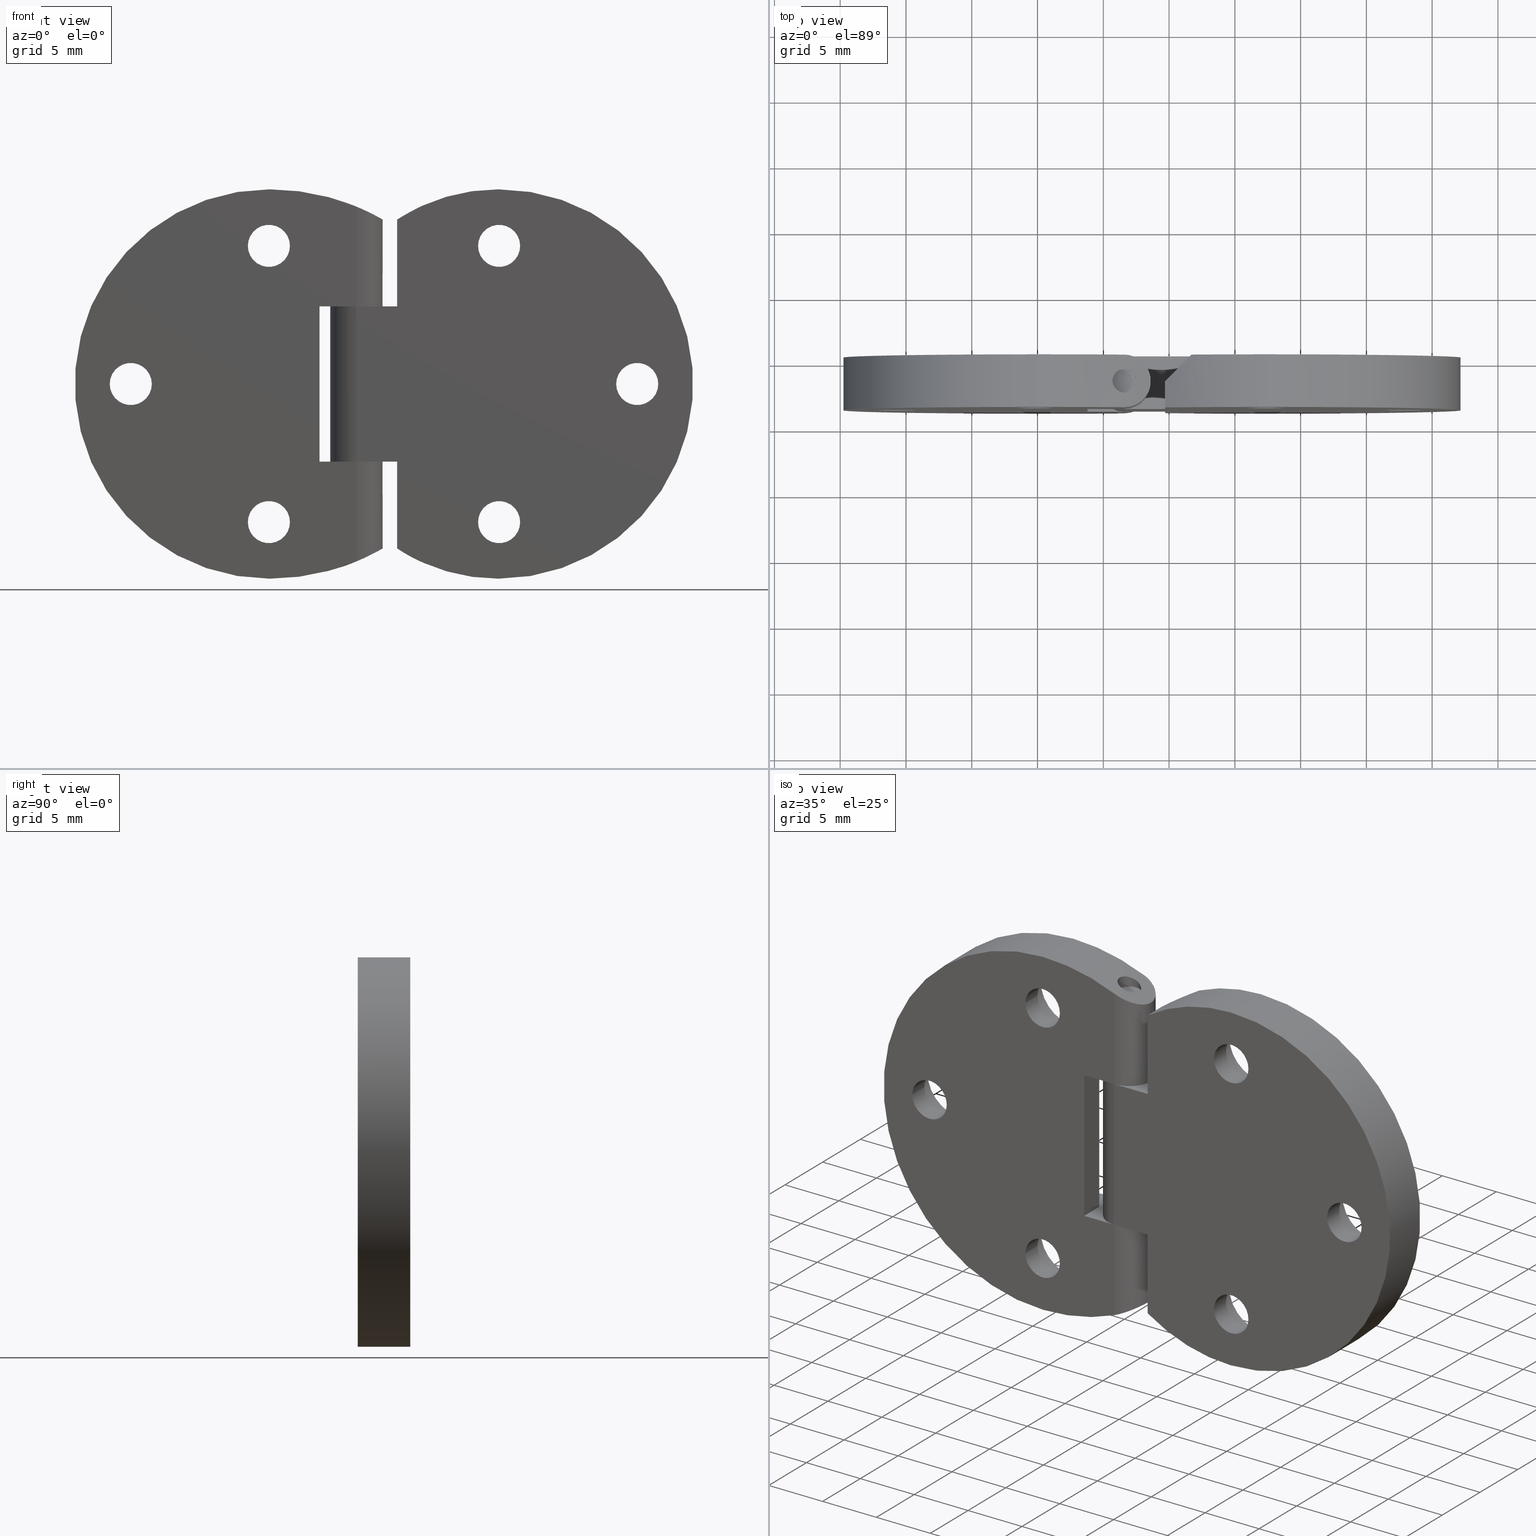
[diagram: canonical four-view strip — front | top / right | iso, engineering-drawing reading convention]
A machine part, canonical four-view strip (front | top / right | iso — engineering-drawing reading convention). The complete STEP part file that produces these views, byte-faithful:
ISO-10303-21;
HEADER;
/* Generated by software containing ST-Developer
 * from STEP Tools, Inc. (www.steptools.com) 
 */

FILE_DESCRIPTION(
/* description */ (''),
/* implementation_level */ '2;1');

FILE_NAME(
/* name */ '\\\\SYNOLOGYNAS\\web\\db2\\HC3047\\\X2\B3C4BA74\X0\\\HC304
7.stp',
/* time_stamp */ '2024-02-15T15:40:53+09:00',
/* author */ ('user'),
/* organization */ (''),
/* preprocessor_version */ 'ST-DEVELOPER v15.6',
/* originating_system */ 'Autodesk Inventor 2015',
/* authorisation */ '');

FILE_SCHEMA (('AUTOMOTIVE_DESIGN { 1 0 10303 214 3 1 1 }'));
ENDSEC;

DATA;
#10=MECHANICAL_DESIGN_GEOMETRIC_PRESENTATION_REPRESENTATION('',(#35,#36,
#34),#1439);
#11=ITEM_DEFINED_TRANSFORMATION($,$,#772,#871);
#12=ITEM_DEFINED_TRANSFORMATION($,$,#817,#872);
#13=ITEM_DEFINED_TRANSFORMATION($,$,#864,#873);
#14=(
REPRESENTATION_RELATIONSHIP($,$,#1454,#1457)
REPRESENTATION_RELATIONSHIP_WITH_TRANSFORMATION(#11)
SHAPE_REPRESENTATION_RELATIONSHIP()
);
#15=(
REPRESENTATION_RELATIONSHIP($,$,#1455,#1457)
REPRESENTATION_RELATIONSHIP_WITH_TRANSFORMATION(#12)
SHAPE_REPRESENTATION_RELATIONSHIP()
);
#16=(
REPRESENTATION_RELATIONSHIP($,$,#1456,#1457)
REPRESENTATION_RELATIONSHIP_WITH_TRANSFORMATION(#13)
SHAPE_REPRESENTATION_RELATIONSHIP()
);
#17=CONTEXT_DEPENDENT_SHAPE_REPRESENTATION(#14,#1451);
#18=CONTEXT_DEPENDENT_SHAPE_REPRESENTATION(#15,#1452);
#19=CONTEXT_DEPENDENT_SHAPE_REPRESENTATION(#16,#1453);
#20=NEXT_ASSEMBLY_USAGE_OCCURRENCE('\X2\B0A0AC1C3137\X0\:1',$,$,#1462,#1459,
$);
#21=NEXT_ASSEMBLY_USAGE_OCCURRENCE('\X2\B0A0AC1C3153\X0\:1',$,$,#1462,#1460,
$);
#22=NEXT_ASSEMBLY_USAGE_OCCURRENCE('\X2\D540\X0\:1',$,$,#1462,#1461,$);
#23=DIMENSIONAL_EXPONENTS(0.,0.,0.,0.,0.,0.,0.);
#24=(
CONVERSION_BASED_UNIT('degree',#25)
NAMED_UNIT(#23)
PLANE_ANGLE_UNIT()
);
#25=PLANE_ANGLE_MEASURE_WITH_UNIT(PLANE_ANGLE_MEASURE(0.01745329252),#1442);
#26=ELLIPSE('',#819,19.8543286647945,14.0391304347826);
#27=ELLIPSE('',#830,19.8543286647944,14.0391304347826);
#28=SHAPE_REPRESENTATION_RELATIONSHIP('SRR','None',#1454,#31);
#29=SHAPE_REPRESENTATION_RELATIONSHIP('SRR','None',#1455,#32);
#30=SHAPE_REPRESENTATION_RELATIONSHIP('SRR','None',#1456,#33);
#31=ADVANCED_BREP_SHAPE_REPRESENTATION($,(#37),#1435);
#32=ADVANCED_BREP_SHAPE_REPRESENTATION($,(#38),#1436);
#33=ADVANCED_BREP_SHAPE_REPRESENTATION($,(#39),#1437);
#34=STYLED_ITEM('',(#1478),#37);
#35=STYLED_ITEM('',(#1479),#38);
#36=STYLED_ITEM('',(#1480),#39);
#37=MANIFOLD_SOLID_BREP('\X2\C194B9ACB4DC\X0\1',#769);
#38=MANIFOLD_SOLID_BREP('\X2\C194B9ACB4DC\X0\1',#770);
#39=MANIFOLD_SOLID_BREP('\X2\C194B9ACB4DC\X0\2',#771);
#40=B_SPLINE_CURVE_WITH_KNOTS('',3,(#1167,#1168,#1169,#1170,#1171,#1172,
#1173,#1174,#1175,#1176,#1177,#1178,#1179,#1180,#1181,#1182,#1183,#1184,
#1185),.UNSPECIFIED.,.F.,.F.,(4,2,2,2,3,2,2,2,4),(-0.318331329633371,-0.234552121764994,
-0.150772913896618,-0.0753864569483088,0.,0.0753864569483089,0.150772913896618,
0.234552121764994,0.318331329633371),.UNSPECIFIED.);
#41=B_SPLINE_CURVE_WITH_KNOTS('',3,(#1210,#1211,#1212,#1213,#1214,#1215,
#1216,#1217,#1218,#1219,#1220,#1221,#1222,#1223,#1224,#1225,#1226,#1227,
#1228),.UNSPECIFIED.,.F.,.F.,(4,2,2,2,3,2,2,2,4),(0.939767633364581,1.02354684123296,
1.10732604910133,1.18271250604964,1.25809896299795,1.33348541994626,1.40887187689457,
1.49265108476295,1.57643029263132),.UNSPECIFIED.);
#42=B_SPLINE_CURVE_WITH_KNOTS('',3,(#1242,#1243,#1244,#1245,#1246,#1247,
#1248,#1249,#1250,#1251,#1252,#1253,#1254,#1255,#1256,#1257,#1258,#1259,
#1260,#1261,#1262,#1263,#1264,#1265,#1266,#1267,#1268,#1269,#1270,#1271,
#1272,#1273,#1274,#1275),.UNSPECIFIED.,.T.,.F.,(4,2,2,2,2,2,2,2,2,2,2,2,
2,2,2,2,4),(-0.565279903389313,-0.531539011761195,-0.497798120133076,-0.461259216883568,
-0.42472031363406,-0.387502018565409,-0.350283723496757,-0.316461837595707,
-0.282639951694657,-0.248818065793606,-0.214996179892556,-0.177777884823905,
-0.140559589755253,-0.104020686505745,-0.0674817832562375,-0.0337408916281188,
0.),.UNSPECIFIED.);
#43=B_SPLINE_CURVE_WITH_KNOTS('',3,(#1281,#1282,#1283,#1284,#1285,#1286,
#1287,#1288,#1289,#1290,#1291,#1292,#1293,#1294,#1295,#1296,#1297,#1298,
#1299,#1300,#1301,#1302,#1303,#1304,#1305,#1306,#1307,#1308,#1309,#1310,
#1311,#1312,#1313,#1314),.UNSPECIFIED.,.T.,.F.,(4,2,2,2,2,2,2,2,2,2,2,2,
2,2,2,2,4),(0.,0.0337408916281188,0.0674817832562375,0.104020686505745,
0.140559589755253,0.177777884823905,0.214996179892556,0.248818065793606,
0.282639951694657,0.316461837595707,0.350283723496757,0.387502018565409,
0.42472031363406,0.461259216883568,0.497798120133076,0.531539011761195,
0.565279903389313),.UNSPECIFIED.);
#44=CYLINDRICAL_SURFACE('',#778,1.6);
#45=CYLINDRICAL_SURFACE('',#783,1.6);
#46=CYLINDRICAL_SURFACE('',#788,1.6);
#47=CYLINDRICAL_SURFACE('',#790,3.);
#48=CYLINDRICAL_SURFACE('',#792,3.);
#49=CYLINDRICAL_SURFACE('',#794,3.);
#50=CYLINDRICAL_SURFACE('',#796,2.);
#51=CYLINDRICAL_SURFACE('',#804,2.);
#52=CYLINDRICAL_SURFACE('',#812,0.9);
#53=CYLINDRICAL_SURFACE('',#813,14.8);
#54=CYLINDRICAL_SURFACE('',#814,17.2282608695652);
#55=CYLINDRICAL_SURFACE('',#815,17.2282608695652);
#56=CYLINDRICAL_SURFACE('',#816,0.9);
#57=CYLINDRICAL_SURFACE('',#820,14.0391304347826);
#58=CYLINDRICAL_SURFACE('',#831,14.0391304347826);
#59=CYLINDRICAL_SURFACE('',#836,1.6);
#60=CYLINDRICAL_SURFACE('',#841,1.6);
#61=CYLINDRICAL_SURFACE('',#846,1.6);
#62=CYLINDRICAL_SURFACE('',#848,3.);
#63=CYLINDRICAL_SURFACE('',#849,3.);
#64=CYLINDRICAL_SURFACE('',#850,3.);
#65=CYLINDRICAL_SURFACE('',#851,2.);
#66=CYLINDRICAL_SURFACE('',#862,14.8);
#67=CYLINDRICAL_SURFACE('',#863,0.9);
#68=CYLINDRICAL_SURFACE('',#867,0.9);
#69=FACE_BOUND('',#211,.T.);
#70=FACE_BOUND('',#213,.T.);
#71=FACE_BOUND('',#215,.T.);
#72=FACE_BOUND('',#217,.T.);
#73=FACE_BOUND('',#219,.T.);
#74=FACE_BOUND('',#221,.T.);
#75=FACE_BOUND('',#223,.T.);
#76=FACE_BOUND('',#225,.T.);
#77=FACE_BOUND('',#227,.T.);
#78=FACE_BOUND('',#230,.T.);
#79=FACE_BOUND('',#232,.T.);
#80=FACE_BOUND('',#233,.T.);
#81=FACE_BOUND('',#234,.T.);
#82=FACE_BOUND('',#237,.T.);
#83=FACE_BOUND('',#239,.T.);
#84=FACE_BOUND('',#240,.T.);
#85=FACE_BOUND('',#241,.T.);
#86=FACE_BOUND('',#243,.T.);
#87=FACE_BOUND('',#246,.T.);
#88=FACE_BOUND('',#248,.T.);
#89=FACE_BOUND('',#250,.T.);
#90=FACE_BOUND('',#254,.T.);
#91=FACE_BOUND('',#255,.T.);
#92=FACE_BOUND('',#256,.T.);
#93=FACE_BOUND('',#260,.T.);
#94=FACE_BOUND('',#262,.T.);
#95=FACE_BOUND('',#264,.T.);
#96=FACE_BOUND('',#266,.T.);
#97=FACE_BOUND('',#268,.T.);
#98=FACE_BOUND('',#270,.T.);
#99=FACE_BOUND('',#272,.T.);
#100=FACE_BOUND('',#274,.T.);
#101=FACE_BOUND('',#276,.T.);
#102=FACE_BOUND('',#279,.T.);
#103=FACE_BOUND('',#280,.T.);
#104=FACE_BOUND('',#281,.T.);
#105=FACE_BOUND('',#283,.T.);
#106=FACE_BOUND('',#287,.T.);
#107=FACE_BOUND('',#290,.T.);
#108=FACE_BOUND('',#293,.T.);
#109=CIRCLE('',#776,1.6);
#110=CIRCLE('',#777,3.);
#111=CIRCLE('',#779,1.6);
#112=CIRCLE('',#781,1.6);
#113=CIRCLE('',#782,3.);
#114=CIRCLE('',#784,1.6);
#115=CIRCLE('',#786,1.6);
#116=CIRCLE('',#787,3.);
#117=CIRCLE('',#789,1.6);
#118=CIRCLE('',#791,3.);
#119=CIRCLE('',#793,3.);
#120=CIRCLE('',#795,3.);
#121=CIRCLE('',#797,2.);
#122=CIRCLE('',#799,0.9);
#123=CIRCLE('',#801,17.2282608695652);
#124=CIRCLE('',#802,14.8);
#125=CIRCLE('',#803,17.2282608695652);
#126=CIRCLE('',#805,2.);
#127=CIRCLE('',#807,0.9);
#128=CIRCLE('',#809,17.2282608695652);
#129=CIRCLE('',#810,14.8);
#130=CIRCLE('',#811,17.2282608695652);
#131=CIRCLE('',#821,14.0391304347826);
#132=CIRCLE('',#822,14.0391304347826);
#133=CIRCLE('',#824,14.0391304347826);
#134=CIRCLE('',#825,14.8);
#135=CIRCLE('',#826,3.);
#136=CIRCLE('',#827,3.);
#137=CIRCLE('',#828,3.);
#138=CIRCLE('',#832,14.0391304347826);
#139=CIRCLE('',#834,1.6);
#140=CIRCLE('',#835,3.);
#141=CIRCLE('',#837,1.6);
#142=CIRCLE('',#839,1.6);
#143=CIRCLE('',#840,3.);
#144=CIRCLE('',#842,1.6);
#145=CIRCLE('',#844,1.6);
#146=CIRCLE('',#845,3.);
#147=CIRCLE('',#847,1.6);
#148=CIRCLE('',#852,2.);
#149=CIRCLE('',#853,2.);
#150=CIRCLE('',#855,14.8);
#151=CIRCLE('',#857,0.9);
#152=CIRCLE('',#861,0.9);
#153=CIRCLE('',#866,0.9);
#154=CIRCLE('',#868,0.9);
#155=CONICAL_SURFACE('',#775,2.3,0.785398163397448);
#156=CONICAL_SURFACE('',#780,2.3,0.785398163397448);
#157=CONICAL_SURFACE('',#785,2.3,0.785398163397448);
#158=CONICAL_SURFACE('',#833,2.3,0.785398163397448);
#159=CONICAL_SURFACE('',#838,2.3,0.785398163397448);
#160=CONICAL_SURFACE('',#843,2.3,0.785398163397448);
#161=FACE_OUTER_BOUND('',#208,.T.);
#162=FACE_OUTER_BOUND('',#209,.T.);
#163=FACE_OUTER_BOUND('',#210,.T.);
#164=FACE_OUTER_BOUND('',#212,.T.);
#165=FACE_OUTER_BOUND('',#214,.T.);
#166=FACE_OUTER_BOUND('',#216,.T.);
#167=FACE_OUTER_BOUND('',#218,.T.);
#168=FACE_OUTER_BOUND('',#220,.T.);
#169=FACE_OUTER_BOUND('',#222,.T.);
#170=FACE_OUTER_BOUND('',#224,.T.);
#171=FACE_OUTER_BOUND('',#226,.T.);
#172=FACE_OUTER_BOUND('',#228,.T.);
#173=FACE_OUTER_BOUND('',#229,.T.);
#174=FACE_OUTER_BOUND('',#231,.T.);
#175=FACE_OUTER_BOUND('',#235,.T.);
#176=FACE_OUTER_BOUND('',#236,.T.);
#177=FACE_OUTER_BOUND('',#238,.T.);
#178=FACE_OUTER_BOUND('',#242,.T.);
#179=FACE_OUTER_BOUND('',#244,.T.);
#180=FACE_OUTER_BOUND('',#245,.T.);
#181=FACE_OUTER_BOUND('',#247,.T.);
#182=FACE_OUTER_BOUND('',#249,.T.);
#183=FACE_OUTER_BOUND('',#251,.T.);
#184=FACE_OUTER_BOUND('',#252,.T.);
#185=FACE_OUTER_BOUND('',#253,.T.);
#186=FACE_OUTER_BOUND('',#257,.T.);
#187=FACE_OUTER_BOUND('',#258,.T.);
#188=FACE_OUTER_BOUND('',#259,.T.);
#189=FACE_OUTER_BOUND('',#261,.T.);
#190=FACE_OUTER_BOUND('',#263,.T.);
#191=FACE_OUTER_BOUND('',#265,.T.);
#192=FACE_OUTER_BOUND('',#267,.T.);
#193=FACE_OUTER_BOUND('',#269,.T.);
#194=FACE_OUTER_BOUND('',#271,.T.);
#195=FACE_OUTER_BOUND('',#273,.T.);
#196=FACE_OUTER_BOUND('',#275,.T.);
#197=FACE_OUTER_BOUND('',#277,.T.);
#198=FACE_OUTER_BOUND('',#278,.T.);
#199=FACE_OUTER_BOUND('',#282,.T.);
#200=FACE_OUTER_BOUND('',#284,.T.);
#201=FACE_OUTER_BOUND('',#285,.T.);
#202=FACE_OUTER_BOUND('',#286,.T.);
#203=FACE_OUTER_BOUND('',#288,.T.);
#204=FACE_OUTER_BOUND('',#289,.T.);
#205=FACE_OUTER_BOUND('',#291,.T.);
#206=FACE_OUTER_BOUND('',#292,.T.);
#207=FACE_OUTER_BOUND('',#294,.T.);
#208=EDGE_LOOP('',(#528,#529,#530,#531));
#209=EDGE_LOOP('',(#532,#533,#534,#535));
#210=EDGE_LOOP('',(#536));
#211=EDGE_LOOP('',(#537));
#212=EDGE_LOOP('',(#538));
#213=EDGE_LOOP('',(#539));
#214=EDGE_LOOP('',(#540));
#215=EDGE_LOOP('',(#541));
#216=EDGE_LOOP('',(#542));
#217=EDGE_LOOP('',(#543));
#218=EDGE_LOOP('',(#544));
#219=EDGE_LOOP('',(#545));
#220=EDGE_LOOP('',(#546));
#221=EDGE_LOOP('',(#547));
#222=EDGE_LOOP('',(#548));
#223=EDGE_LOOP('',(#549));
#224=EDGE_LOOP('',(#550));
#225=EDGE_LOOP('',(#551));
#226=EDGE_LOOP('',(#552));
#227=EDGE_LOOP('',(#553));
#228=EDGE_LOOP('',(#554,#555,#556,#557));
#229=EDGE_LOOP('',(#558,#559,#560,#561,#562));
#230=EDGE_LOOP('',(#563));
#231=EDGE_LOOP('',(#564,#565,#566,#567,#568,#569,#570,#571));
#232=EDGE_LOOP('',(#572));
#233=EDGE_LOOP('',(#573));
#234=EDGE_LOOP('',(#574));
#235=EDGE_LOOP('',(#575,#576,#577,#578));
#236=EDGE_LOOP('',(#579,#580,#581,#582,#583));
#237=EDGE_LOOP('',(#584));
#238=EDGE_LOOP('',(#585,#586,#587,#588,#589,#590,#591,#592));
#239=EDGE_LOOP('',(#593));
#240=EDGE_LOOP('',(#594));
#241=EDGE_LOOP('',(#595));
#242=EDGE_LOOP('',(#596));
#243=EDGE_LOOP('',(#597));
#244=EDGE_LOOP('',(#598,#599,#600,#601));
#245=EDGE_LOOP('',(#602,#603,#604,#605));
#246=EDGE_LOOP('',(#606));
#247=EDGE_LOOP('',(#607,#608,#609,#610));
#248=EDGE_LOOP('',(#611));
#249=EDGE_LOOP('',(#612));
#250=EDGE_LOOP('',(#613));
#251=EDGE_LOOP('',(#614,#615,#616,#617));
#252=EDGE_LOOP('',(#618,#619,#620,#621,#622));
#253=EDGE_LOOP('',(#623,#624,#625,#626,#627,#628,#629,#630));
#254=EDGE_LOOP('',(#631));
#255=EDGE_LOOP('',(#632));
#256=EDGE_LOOP('',(#633));
#257=EDGE_LOOP('',(#634,#635,#636,#637));
#258=EDGE_LOOP('',(#638,#639,#640,#641,#642));
#259=EDGE_LOOP('',(#643));
#260=EDGE_LOOP('',(#644));
#261=EDGE_LOOP('',(#645));
#262=EDGE_LOOP('',(#646));
#263=EDGE_LOOP('',(#647));
#264=EDGE_LOOP('',(#648));
#265=EDGE_LOOP('',(#649));
#266=EDGE_LOOP('',(#650));
#267=EDGE_LOOP('',(#651));
#268=EDGE_LOOP('',(#652));
#269=EDGE_LOOP('',(#653));
#270=EDGE_LOOP('',(#654));
#271=EDGE_LOOP('',(#655));
#272=EDGE_LOOP('',(#656));
#273=EDGE_LOOP('',(#657));
#274=EDGE_LOOP('',(#658));
#275=EDGE_LOOP('',(#659));
#276=EDGE_LOOP('',(#660));
#277=EDGE_LOOP('',(#661,#662,#663,#664));
#278=EDGE_LOOP('',(#665,#666,#667,#668,#669,#670,#671,#672));
#279=EDGE_LOOP('',(#673));
#280=EDGE_LOOP('',(#674));
#281=EDGE_LOOP('',(#675));
#282=EDGE_LOOP('',(#676,#677,#678,#679,#680));
#283=EDGE_LOOP('',(#681));
#284=EDGE_LOOP('',(#682,#683,#684,#685));
#285=EDGE_LOOP('',(#686,#687,#688,#689));
#286=EDGE_LOOP('',(#690,#691,#692,#693,#694));
#287=EDGE_LOOP('',(#695));
#288=EDGE_LOOP('',(#696,#697,#698,#699));
#289=EDGE_LOOP('',(#700));
#290=EDGE_LOOP('',(#701));
#291=EDGE_LOOP('',(#702));
#292=EDGE_LOOP('',(#703));
#293=EDGE_LOOP('',(#704));
#294=EDGE_LOOP('',(#705));
#295=LINE('',#1119,#332);
#296=LINE('',#1121,#333);
#297=LINE('',#1123,#334);
#298=LINE('',#1124,#335);
#299=LINE('',#1127,#336);
#300=LINE('',#1129,#337);
#301=LINE('',#1130,#338);
#302=LINE('',#1187,#339);
#303=LINE('',#1190,#340);
#304=LINE('',#1192,#341);
#305=LINE('',#1193,#342);
#306=LINE('',#1204,#343);
#307=LINE('',#1205,#344);
#308=LINE('',#1229,#345);
#309=LINE('',#1231,#346);
#310=LINE('',#1277,#347);
#311=LINE('',#1278,#348);
#312=LINE('',#1323,#349);
#313=LINE('',#1325,#350);
#314=LINE('',#1326,#351);
#315=LINE('',#1331,#352);
#316=LINE('',#1334,#353);
#317=LINE('',#1337,#354);
#318=LINE('',#1339,#355);
#319=LINE('',#1341,#356);
#320=LINE('',#1343,#357);
#321=LINE('',#1357,#358);
#322=LINE('',#1358,#359);
#323=LINE('',#1361,#360);
#324=LINE('',#1364,#361);
#325=LINE('',#1396,#362);
#326=LINE('',#1400,#363);
#327=LINE('',#1401,#364);
#328=LINE('',#1404,#365);
#329=LINE('',#1405,#366);
#330=LINE('',#1407,#367);
#331=LINE('',#1412,#368);
#332=VECTOR('',#878,2.82842712474619);
#333=VECTOR('',#879,11.8);
#334=VECTOR('',#880,2.82842712474619);
#335=VECTOR('',#881,11.8);
#336=VECTOR('',#884,2.);
#337=VECTOR('',#885,11.8);
#338=VECTOR('',#886,2.);
#339=VECTOR('',#931,7.5856629894267);
#340=VECTOR('',#934,7.5856629894267);
#341=VECTOR('',#937,2.79999999999999);
#342=VECTOR('',#938,4.79999999999999);
#343=VECTOR('',#949,7.5856629894267);
#344=VECTOR('',#950,2.79999999999999);
#345=VECTOR('',#955,7.5856629894267);
#346=VECTOR('',#958,4.79999999999999);
#347=VECTOR('',#973,4.);
#348=VECTOR('',#974,4.);
#349=VECTOR('',#987,6.6);
#350=VECTOR('',#988,2.82842712474619);
#351=VECTOR('',#989,7.6908026657772);
#352=VECTOR('',#994,4.);
#353=VECTOR('',#997,2.);
#354=VECTOR('',#1000,5.1);
#355=VECTOR('',#1001,11.8);
#356=VECTOR('',#1002,5.1);
#357=VECTOR('',#1003,7.6908026657772);
#358=VECTOR('',#1018,2.82842712474619);
#359=VECTOR('',#1019,6.6);
#360=VECTOR('',#1022,2.);
#361=VECTOR('',#1025,4.);
#362=VECTOR('',#1066,11.8);
#363=VECTOR('',#1071,3.1);
#364=VECTOR('',#1072,6.6);
#365=VECTOR('',#1075,6.6);
#366=VECTOR('',#1076,3.1);
#367=VECTOR('',#1079,2.);
#368=VECTOR('',#1086,2.);
#369=VERTEX_POINT('',#1117);
#370=VERTEX_POINT('',#1118);
#371=VERTEX_POINT('',#1120);
#372=VERTEX_POINT('',#1122);
#373=VERTEX_POINT('',#1126);
#374=VERTEX_POINT('',#1128);
#375=VERTEX_POINT('',#1132);
#376=VERTEX_POINT('',#1134);
#377=VERTEX_POINT('',#1137);
#378=VERTEX_POINT('',#1140);
#379=VERTEX_POINT('',#1142);
#380=VERTEX_POINT('',#1145);
#381=VERTEX_POINT('',#1148);
#382=VERTEX_POINT('',#1150);
#383=VERTEX_POINT('',#1153);
#384=VERTEX_POINT('',#1156);
#385=VERTEX_POINT('',#1159);
#386=VERTEX_POINT('',#1162);
#387=VERTEX_POINT('',#1165);
#388=VERTEX_POINT('',#1166);
#389=VERTEX_POINT('',#1186);
#390=VERTEX_POINT('',#1188);
#391=VERTEX_POINT('',#1194);
#392=VERTEX_POINT('',#1197);
#393=VERTEX_POINT('',#1199);
#394=VERTEX_POINT('',#1201);
#395=VERTEX_POINT('',#1203);
#396=VERTEX_POINT('',#1207);
#397=VERTEX_POINT('',#1209);
#398=VERTEX_POINT('',#1232);
#399=VERTEX_POINT('',#1235);
#400=VERTEX_POINT('',#1237);
#401=VERTEX_POINT('',#1241);
#402=VERTEX_POINT('',#1280);
#403=VERTEX_POINT('',#1319);
#404=VERTEX_POINT('',#1320);
#405=VERTEX_POINT('',#1322);
#406=VERTEX_POINT('',#1324);
#407=VERTEX_POINT('',#1328);
#408=VERTEX_POINT('',#1330);
#409=VERTEX_POINT('',#1332);
#410=VERTEX_POINT('',#1336);
#411=VERTEX_POINT('',#1338);
#412=VERTEX_POINT('',#1340);
#413=VERTEX_POINT('',#1342);
#414=VERTEX_POINT('',#1344);
#415=VERTEX_POINT('',#1347);
#416=VERTEX_POINT('',#1349);
#417=VERTEX_POINT('',#1351);
#418=VERTEX_POINT('',#1354);
#419=VERTEX_POINT('',#1356);
#420=VERTEX_POINT('',#1360);
#421=VERTEX_POINT('',#1362);
#422=VERTEX_POINT('',#1366);
#423=VERTEX_POINT('',#1368);
#424=VERTEX_POINT('',#1371);
#425=VERTEX_POINT('',#1374);
#426=VERTEX_POINT('',#1376);
#427=VERTEX_POINT('',#1379);
#428=VERTEX_POINT('',#1382);
#429=VERTEX_POINT('',#1384);
#430=VERTEX_POINT('',#1387);
#431=VERTEX_POINT('',#1393);
#432=VERTEX_POINT('',#1395);
#433=VERTEX_POINT('',#1399);
#434=VERTEX_POINT('',#1403);
#435=VERTEX_POINT('',#1408);
#436=VERTEX_POINT('',#1414);
#437=VERTEX_POINT('',#1420);
#438=VERTEX_POINT('',#1423);
#439=EDGE_CURVE('',#369,#370,#295,.F.);
#440=EDGE_CURVE('',#370,#371,#296,.T.);
#441=EDGE_CURVE('',#371,#372,#297,.F.);
#442=EDGE_CURVE('',#372,#369,#298,.T.);
#443=EDGE_CURVE('',#370,#373,#299,.T.);
#444=EDGE_CURVE('',#374,#373,#300,.T.);
#445=EDGE_CURVE('',#371,#374,#301,.T.);
#446=EDGE_CURVE('',#375,#375,#109,.T.);
#447=EDGE_CURVE('',#376,#376,#110,.T.);
#448=EDGE_CURVE('',#377,#377,#111,.T.);
#449=EDGE_CURVE('',#378,#378,#112,.T.);
#450=EDGE_CURVE('',#379,#379,#113,.T.);
#451=EDGE_CURVE('',#380,#380,#114,.T.);
#452=EDGE_CURVE('',#381,#381,#115,.T.);
#453=EDGE_CURVE('',#382,#382,#116,.T.);
#454=EDGE_CURVE('',#383,#383,#117,.T.);
#455=EDGE_CURVE('',#384,#384,#118,.T.);
#456=EDGE_CURVE('',#385,#385,#119,.T.);
#457=EDGE_CURVE('',#386,#386,#120,.T.);
#458=EDGE_CURVE('',#387,#388,#40,.F.);
#459=EDGE_CURVE('',#388,#389,#302,.T.);
#460=EDGE_CURVE('',#389,#390,#121,.T.);
#461=EDGE_CURVE('',#390,#387,#303,.T.);
#462=EDGE_CURVE('',#373,#389,#304,.T.);
#463=EDGE_CURVE('',#390,#369,#305,.T.);
#464=EDGE_CURVE('',#391,#391,#122,.T.);
#465=EDGE_CURVE('',#388,#392,#123,.T.);
#466=EDGE_CURVE('',#392,#393,#124,.T.);
#467=EDGE_CURVE('',#393,#394,#125,.T.);
#468=EDGE_CURVE('',#395,#394,#306,.T.);
#469=EDGE_CURVE('',#395,#374,#307,.T.);
#470=EDGE_CURVE('',#396,#395,#126,.T.);
#471=EDGE_CURVE('',#394,#397,#41,.T.);
#472=EDGE_CURVE('',#397,#396,#308,.T.);
#473=EDGE_CURVE('',#372,#396,#309,.T.);
#474=EDGE_CURVE('',#398,#398,#127,.T.);
#475=EDGE_CURVE('',#397,#399,#128,.T.);
#476=EDGE_CURVE('',#399,#400,#129,.T.);
#477=EDGE_CURVE('',#400,#387,#130,.T.);
#478=EDGE_CURVE('',#401,#401,#42,.T.);
#479=EDGE_CURVE('',#392,#400,#310,.T.);
#480=EDGE_CURVE('',#393,#399,#311,.T.);
#481=EDGE_CURVE('',#402,#402,#43,.T.);
#482=EDGE_CURVE('',#403,#404,#26,.T.);
#483=EDGE_CURVE('',#404,#405,#312,.T.);
#484=EDGE_CURVE('',#405,#406,#313,.F.);
#485=EDGE_CURVE('',#406,#403,#314,.T.);
#486=EDGE_CURVE('',#407,#403,#131,.T.);
#487=EDGE_CURVE('',#408,#407,#315,.T.);
#488=EDGE_CURVE('',#409,#408,#132,.T.);
#489=EDGE_CURVE('',#404,#409,#316,.T.);
#490=EDGE_CURVE('',#406,#410,#317,.T.);
#491=EDGE_CURVE('',#411,#410,#318,.T.);
#492=EDGE_CURVE('',#411,#412,#319,.T.);
#493=EDGE_CURVE('',#413,#412,#320,.T.);
#494=EDGE_CURVE('',#413,#414,#133,.T.);
#495=EDGE_CURVE('',#414,#407,#134,.T.);
#496=EDGE_CURVE('',#415,#415,#135,.T.);
#497=EDGE_CURVE('',#416,#416,#136,.T.);
#498=EDGE_CURVE('',#417,#417,#137,.T.);
#499=EDGE_CURVE('',#418,#413,#27,.T.);
#500=EDGE_CURVE('',#412,#419,#321,.F.);
#501=EDGE_CURVE('',#419,#418,#322,.T.);
#502=EDGE_CURVE('',#418,#420,#323,.T.);
#503=EDGE_CURVE('',#421,#420,#138,.T.);
#504=EDGE_CURVE('',#421,#414,#324,.T.);
#505=EDGE_CURVE('',#422,#422,#139,.T.);
#506=EDGE_CURVE('',#423,#423,#140,.T.);
#507=EDGE_CURVE('',#424,#424,#141,.T.);
#508=EDGE_CURVE('',#425,#425,#142,.T.);
#509=EDGE_CURVE('',#426,#426,#143,.T.);
#510=EDGE_CURVE('',#427,#427,#144,.T.);
#511=EDGE_CURVE('',#428,#428,#145,.T.);
#512=EDGE_CURVE('',#429,#429,#146,.T.);
#513=EDGE_CURVE('',#430,#430,#147,.T.);
#514=EDGE_CURVE('',#410,#431,#148,.T.);
#515=EDGE_CURVE('',#431,#432,#325,.T.);
#516=EDGE_CURVE('',#432,#411,#149,.T.);
#517=EDGE_CURVE('',#431,#433,#326,.T.);
#518=EDGE_CURVE('',#433,#409,#327,.T.);
#519=EDGE_CURVE('',#408,#421,#150,.T.);
#520=EDGE_CURVE('',#420,#434,#328,.T.);
#521=EDGE_CURVE('',#434,#432,#329,.T.);
#522=EDGE_CURVE('',#405,#433,#330,.T.);
#523=EDGE_CURVE('',#435,#435,#151,.T.);
#524=EDGE_CURVE('',#419,#434,#331,.T.);
#525=EDGE_CURVE('',#436,#436,#152,.T.);
#526=EDGE_CURVE('',#437,#437,#153,.T.);
#527=EDGE_CURVE('',#438,#438,#154,.T.);
#528=ORIENTED_EDGE('',*,*,#439,.T.);
#529=ORIENTED_EDGE('',*,*,#440,.T.);
#530=ORIENTED_EDGE('',*,*,#441,.T.);
#531=ORIENTED_EDGE('',*,*,#442,.T.);
#532=ORIENTED_EDGE('',*,*,#440,.F.);
#533=ORIENTED_EDGE('',*,*,#443,.T.);
#534=ORIENTED_EDGE('',*,*,#444,.F.);
#535=ORIENTED_EDGE('',*,*,#445,.F.);
#536=ORIENTED_EDGE('',*,*,#446,.F.);
#537=ORIENTED_EDGE('',*,*,#447,.F.);
#538=ORIENTED_EDGE('',*,*,#448,.F.);
#539=ORIENTED_EDGE('',*,*,#446,.T.);
#540=ORIENTED_EDGE('',*,*,#449,.F.);
#541=ORIENTED_EDGE('',*,*,#450,.F.);
#542=ORIENTED_EDGE('',*,*,#451,.F.);
#543=ORIENTED_EDGE('',*,*,#449,.T.);
#544=ORIENTED_EDGE('',*,*,#452,.F.);
#545=ORIENTED_EDGE('',*,*,#453,.F.);
#546=ORIENTED_EDGE('',*,*,#454,.F.);
#547=ORIENTED_EDGE('',*,*,#452,.T.);
#548=ORIENTED_EDGE('',*,*,#447,.T.);
#549=ORIENTED_EDGE('',*,*,#455,.F.);
#550=ORIENTED_EDGE('',*,*,#450,.T.);
#551=ORIENTED_EDGE('',*,*,#456,.F.);
#552=ORIENTED_EDGE('',*,*,#453,.T.);
#553=ORIENTED_EDGE('',*,*,#457,.F.);
#554=ORIENTED_EDGE('',*,*,#458,.T.);
#555=ORIENTED_EDGE('',*,*,#459,.T.);
#556=ORIENTED_EDGE('',*,*,#460,.T.);
#557=ORIENTED_EDGE('',*,*,#461,.T.);
#558=ORIENTED_EDGE('',*,*,#460,.F.);
#559=ORIENTED_EDGE('',*,*,#462,.F.);
#560=ORIENTED_EDGE('',*,*,#443,.F.);
#561=ORIENTED_EDGE('',*,*,#439,.F.);
#562=ORIENTED_EDGE('',*,*,#463,.F.);
#563=ORIENTED_EDGE('',*,*,#464,.F.);
#564=ORIENTED_EDGE('',*,*,#459,.F.);
#565=ORIENTED_EDGE('',*,*,#465,.T.);
#566=ORIENTED_EDGE('',*,*,#466,.T.);
#567=ORIENTED_EDGE('',*,*,#467,.T.);
#568=ORIENTED_EDGE('',*,*,#468,.F.);
#569=ORIENTED_EDGE('',*,*,#469,.T.);
#570=ORIENTED_EDGE('',*,*,#444,.T.);
#571=ORIENTED_EDGE('',*,*,#462,.T.);
#572=ORIENTED_EDGE('',*,*,#448,.T.);
#573=ORIENTED_EDGE('',*,*,#451,.T.);
#574=ORIENTED_EDGE('',*,*,#454,.T.);
#575=ORIENTED_EDGE('',*,*,#470,.T.);
#576=ORIENTED_EDGE('',*,*,#468,.T.);
#577=ORIENTED_EDGE('',*,*,#471,.T.);
#578=ORIENTED_EDGE('',*,*,#472,.T.);
#579=ORIENTED_EDGE('',*,*,#470,.F.);
#580=ORIENTED_EDGE('',*,*,#473,.F.);
#581=ORIENTED_EDGE('',*,*,#441,.F.);
#582=ORIENTED_EDGE('',*,*,#445,.T.);
#583=ORIENTED_EDGE('',*,*,#469,.F.);
#584=ORIENTED_EDGE('',*,*,#474,.F.);
#585=ORIENTED_EDGE('',*,*,#473,.T.);
#586=ORIENTED_EDGE('',*,*,#472,.F.);
#587=ORIENTED_EDGE('',*,*,#475,.T.);
#588=ORIENTED_EDGE('',*,*,#476,.T.);
#589=ORIENTED_EDGE('',*,*,#477,.T.);
#590=ORIENTED_EDGE('',*,*,#461,.F.);
#591=ORIENTED_EDGE('',*,*,#463,.T.);
#592=ORIENTED_EDGE('',*,*,#442,.F.);
#593=ORIENTED_EDGE('',*,*,#455,.T.);
#594=ORIENTED_EDGE('',*,*,#456,.T.);
#595=ORIENTED_EDGE('',*,*,#457,.T.);
#596=ORIENTED_EDGE('',*,*,#464,.T.);
#597=ORIENTED_EDGE('',*,*,#478,.T.);
#598=ORIENTED_EDGE('',*,*,#466,.F.);
#599=ORIENTED_EDGE('',*,*,#479,.T.);
#600=ORIENTED_EDGE('',*,*,#476,.F.);
#601=ORIENTED_EDGE('',*,*,#480,.F.);
#602=ORIENTED_EDGE('',*,*,#471,.F.);
#603=ORIENTED_EDGE('',*,*,#467,.F.);
#604=ORIENTED_EDGE('',*,*,#480,.T.);
#605=ORIENTED_EDGE('',*,*,#475,.F.);
#606=ORIENTED_EDGE('',*,*,#481,.F.);
#607=ORIENTED_EDGE('',*,*,#458,.F.);
#608=ORIENTED_EDGE('',*,*,#477,.F.);
#609=ORIENTED_EDGE('',*,*,#479,.F.);
#610=ORIENTED_EDGE('',*,*,#465,.F.);
#611=ORIENTED_EDGE('',*,*,#478,.F.);
#612=ORIENTED_EDGE('',*,*,#481,.T.);
#613=ORIENTED_EDGE('',*,*,#474,.T.);
#614=ORIENTED_EDGE('',*,*,#482,.T.);
#615=ORIENTED_EDGE('',*,*,#483,.T.);
#616=ORIENTED_EDGE('',*,*,#484,.T.);
#617=ORIENTED_EDGE('',*,*,#485,.T.);
#618=ORIENTED_EDGE('',*,*,#482,.F.);
#619=ORIENTED_EDGE('',*,*,#486,.F.);
#620=ORIENTED_EDGE('',*,*,#487,.F.);
#621=ORIENTED_EDGE('',*,*,#488,.F.);
#622=ORIENTED_EDGE('',*,*,#489,.F.);
#623=ORIENTED_EDGE('',*,*,#485,.F.);
#624=ORIENTED_EDGE('',*,*,#490,.T.);
#625=ORIENTED_EDGE('',*,*,#491,.F.);
#626=ORIENTED_EDGE('',*,*,#492,.T.);
#627=ORIENTED_EDGE('',*,*,#493,.F.);
#628=ORIENTED_EDGE('',*,*,#494,.T.);
#629=ORIENTED_EDGE('',*,*,#495,.T.);
#630=ORIENTED_EDGE('',*,*,#486,.T.);
#631=ORIENTED_EDGE('',*,*,#496,.T.);
#632=ORIENTED_EDGE('',*,*,#497,.T.);
#633=ORIENTED_EDGE('',*,*,#498,.T.);
#634=ORIENTED_EDGE('',*,*,#499,.T.);
#635=ORIENTED_EDGE('',*,*,#493,.T.);
#636=ORIENTED_EDGE('',*,*,#500,.T.);
#637=ORIENTED_EDGE('',*,*,#501,.T.);
#638=ORIENTED_EDGE('',*,*,#499,.F.);
#639=ORIENTED_EDGE('',*,*,#502,.T.);
#640=ORIENTED_EDGE('',*,*,#503,.F.);
#641=ORIENTED_EDGE('',*,*,#504,.T.);
#642=ORIENTED_EDGE('',*,*,#494,.F.);
#643=ORIENTED_EDGE('',*,*,#505,.F.);
#644=ORIENTED_EDGE('',*,*,#506,.F.);
#645=ORIENTED_EDGE('',*,*,#507,.F.);
#646=ORIENTED_EDGE('',*,*,#505,.T.);
#647=ORIENTED_EDGE('',*,*,#508,.F.);
#648=ORIENTED_EDGE('',*,*,#509,.F.);
#649=ORIENTED_EDGE('',*,*,#510,.F.);
#650=ORIENTED_EDGE('',*,*,#508,.T.);
#651=ORIENTED_EDGE('',*,*,#511,.F.);
#652=ORIENTED_EDGE('',*,*,#512,.F.);
#653=ORIENTED_EDGE('',*,*,#513,.F.);
#654=ORIENTED_EDGE('',*,*,#511,.T.);
#655=ORIENTED_EDGE('',*,*,#506,.T.);
#656=ORIENTED_EDGE('',*,*,#496,.F.);
#657=ORIENTED_EDGE('',*,*,#512,.T.);
#658=ORIENTED_EDGE('',*,*,#497,.F.);
#659=ORIENTED_EDGE('',*,*,#509,.T.);
#660=ORIENTED_EDGE('',*,*,#498,.F.);
#661=ORIENTED_EDGE('',*,*,#514,.T.);
#662=ORIENTED_EDGE('',*,*,#515,.T.);
#663=ORIENTED_EDGE('',*,*,#516,.T.);
#664=ORIENTED_EDGE('',*,*,#491,.T.);
#665=ORIENTED_EDGE('',*,*,#515,.F.);
#666=ORIENTED_EDGE('',*,*,#517,.T.);
#667=ORIENTED_EDGE('',*,*,#518,.T.);
#668=ORIENTED_EDGE('',*,*,#488,.T.);
#669=ORIENTED_EDGE('',*,*,#519,.T.);
#670=ORIENTED_EDGE('',*,*,#503,.T.);
#671=ORIENTED_EDGE('',*,*,#520,.T.);
#672=ORIENTED_EDGE('',*,*,#521,.T.);
#673=ORIENTED_EDGE('',*,*,#507,.T.);
#674=ORIENTED_EDGE('',*,*,#510,.T.);
#675=ORIENTED_EDGE('',*,*,#513,.T.);
#676=ORIENTED_EDGE('',*,*,#514,.F.);
#677=ORIENTED_EDGE('',*,*,#490,.F.);
#678=ORIENTED_EDGE('',*,*,#484,.F.);
#679=ORIENTED_EDGE('',*,*,#522,.T.);
#680=ORIENTED_EDGE('',*,*,#517,.F.);
#681=ORIENTED_EDGE('',*,*,#523,.F.);
#682=ORIENTED_EDGE('',*,*,#483,.F.);
#683=ORIENTED_EDGE('',*,*,#489,.T.);
#684=ORIENTED_EDGE('',*,*,#518,.F.);
#685=ORIENTED_EDGE('',*,*,#522,.F.);
#686=ORIENTED_EDGE('',*,*,#501,.F.);
#687=ORIENTED_EDGE('',*,*,#524,.T.);
#688=ORIENTED_EDGE('',*,*,#520,.F.);
#689=ORIENTED_EDGE('',*,*,#502,.F.);
#690=ORIENTED_EDGE('',*,*,#516,.F.);
#691=ORIENTED_EDGE('',*,*,#521,.F.);
#692=ORIENTED_EDGE('',*,*,#524,.F.);
#693=ORIENTED_EDGE('',*,*,#500,.F.);
#694=ORIENTED_EDGE('',*,*,#492,.F.);
#695=ORIENTED_EDGE('',*,*,#525,.F.);
#696=ORIENTED_EDGE('',*,*,#519,.F.);
#697=ORIENTED_EDGE('',*,*,#487,.T.);
#698=ORIENTED_EDGE('',*,*,#495,.F.);
#699=ORIENTED_EDGE('',*,*,#504,.F.);
#700=ORIENTED_EDGE('',*,*,#525,.T.);
#701=ORIENTED_EDGE('',*,*,#523,.T.);
#702=ORIENTED_EDGE('',*,*,#526,.T.);
#703=ORIENTED_EDGE('',*,*,#526,.F.);
#704=ORIENTED_EDGE('',*,*,#527,.F.);
#705=ORIENTED_EDGE('',*,*,#527,.T.);
#706=PLANE('',#773);
#707=PLANE('',#774);
#708=PLANE('',#798);
#709=PLANE('',#800);
#710=PLANE('',#806);
#711=PLANE('',#808);
#712=PLANE('',#818);
#713=PLANE('',#823);
#714=PLANE('',#829);
#715=PLANE('',#854);
#716=PLANE('',#856);
#717=PLANE('',#858);
#718=PLANE('',#859);
#719=PLANE('',#860);
#720=PLANE('',#865);
#721=PLANE('',#869);
#722=ADVANCED_FACE('',(#161),#706,.T.);
#723=ADVANCED_FACE('',(#162),#707,.F.);
#724=ADVANCED_FACE('',(#163,#69),#155,.F.);
#725=ADVANCED_FACE('',(#164,#70),#44,.F.);
#726=ADVANCED_FACE('',(#165,#71),#156,.F.);
#727=ADVANCED_FACE('',(#166,#72),#45,.F.);
#728=ADVANCED_FACE('',(#167,#73),#157,.F.);
#729=ADVANCED_FACE('',(#168,#74),#46,.F.);
#730=ADVANCED_FACE('',(#169,#75),#47,.F.);
#731=ADVANCED_FACE('',(#170,#76),#48,.F.);
#732=ADVANCED_FACE('',(#171,#77),#49,.F.);
#733=ADVANCED_FACE('',(#172),#50,.T.);
#734=ADVANCED_FACE('',(#173,#78),#708,.F.);
#735=ADVANCED_FACE('',(#174,#79,#80,#81),#709,.T.);
#736=ADVANCED_FACE('',(#175),#51,.T.);
#737=ADVANCED_FACE('',(#176,#82),#710,.F.);
#738=ADVANCED_FACE('',(#177,#83,#84,#85),#711,.T.);
#739=ADVANCED_FACE('',(#178,#86),#52,.F.);
#740=ADVANCED_FACE('',(#179),#53,.T.);
#741=ADVANCED_FACE('',(#180,#87),#54,.T.);
#742=ADVANCED_FACE('',(#181,#88),#55,.T.);
#743=ADVANCED_FACE('',(#182,#89),#56,.F.);
#744=ADVANCED_FACE('',(#183),#712,.T.);
#745=ADVANCED_FACE('',(#184),#57,.T.);
#746=ADVANCED_FACE('',(#185,#90,#91,#92),#713,.T.);
#747=ADVANCED_FACE('',(#186),#714,.T.);
#748=ADVANCED_FACE('',(#187),#58,.T.);
#749=ADVANCED_FACE('',(#188,#93),#158,.F.);
#750=ADVANCED_FACE('',(#189,#94),#59,.F.);
#751=ADVANCED_FACE('',(#190,#95),#159,.F.);
#752=ADVANCED_FACE('',(#191,#96),#60,.F.);
#753=ADVANCED_FACE('',(#192,#97),#160,.F.);
#754=ADVANCED_FACE('',(#193,#98),#61,.F.);
#755=ADVANCED_FACE('',(#194,#99),#62,.F.);
#756=ADVANCED_FACE('',(#195,#100),#63,.F.);
#757=ADVANCED_FACE('',(#196,#101),#64,.F.);
#758=ADVANCED_FACE('',(#197),#65,.T.);
#759=ADVANCED_FACE('',(#198,#102,#103,#104),#715,.T.);
#760=ADVANCED_FACE('',(#199,#105),#716,.F.);
#761=ADVANCED_FACE('',(#200),#717,.F.);
#762=ADVANCED_FACE('',(#201),#718,.F.);
#763=ADVANCED_FACE('',(#202,#106),#719,.F.);
#764=ADVANCED_FACE('',(#203),#66,.T.);
#765=ADVANCED_FACE('',(#204,#107),#67,.F.);
#766=ADVANCED_FACE('',(#205),#720,.F.);
#767=ADVANCED_FACE('',(#206,#108),#68,.T.);
#768=ADVANCED_FACE('',(#207),#721,.T.);
#769=CLOSED_SHELL('',(#722,#723,#724,#725,#726,#727,#728,#729,#730,#731,
#732,#733,#734,#735,#736,#737,#738,#739,#740,#741,#742,#743));
#770=CLOSED_SHELL('',(#744,#745,#746,#747,#748,#749,#750,#751,#752,#753,
#754,#755,#756,#757,#758,#759,#760,#761,#762,#763,#764,#765));
#771=CLOSED_SHELL('',(#766,#767,#768));
#772=AXIS2_PLACEMENT_3D('placement',#1115,#874,#875);
#773=AXIS2_PLACEMENT_3D('',#1116,#876,#877);
#774=AXIS2_PLACEMENT_3D('',#1125,#882,#883);
#775=AXIS2_PLACEMENT_3D('',#1131,#887,#888);
#776=AXIS2_PLACEMENT_3D('',#1133,#889,#890);
#777=AXIS2_PLACEMENT_3D('',#1135,#891,#892);
#778=AXIS2_PLACEMENT_3D('',#1136,#893,#894);
#779=AXIS2_PLACEMENT_3D('',#1138,#895,#896);
#780=AXIS2_PLACEMENT_3D('',#1139,#897,#898);
#781=AXIS2_PLACEMENT_3D('',#1141,#899,#900);
#782=AXIS2_PLACEMENT_3D('',#1143,#901,#902);
#783=AXIS2_PLACEMENT_3D('',#1144,#903,#904);
#784=AXIS2_PLACEMENT_3D('',#1146,#905,#906);
#785=AXIS2_PLACEMENT_3D('',#1147,#907,#908);
#786=AXIS2_PLACEMENT_3D('',#1149,#909,#910);
#787=AXIS2_PLACEMENT_3D('',#1151,#911,#912);
#788=AXIS2_PLACEMENT_3D('',#1152,#913,#914);
#789=AXIS2_PLACEMENT_3D('',#1154,#915,#916);
#790=AXIS2_PLACEMENT_3D('',#1155,#917,#918);
#791=AXIS2_PLACEMENT_3D('',#1157,#919,#920);
#792=AXIS2_PLACEMENT_3D('',#1158,#921,#922);
#793=AXIS2_PLACEMENT_3D('',#1160,#923,#924);
#794=AXIS2_PLACEMENT_3D('',#1161,#925,#926);
#795=AXIS2_PLACEMENT_3D('',#1163,#927,#928);
#796=AXIS2_PLACEMENT_3D('',#1164,#929,#930);
#797=AXIS2_PLACEMENT_3D('',#1189,#932,#933);
#798=AXIS2_PLACEMENT_3D('',#1191,#935,#936);
#799=AXIS2_PLACEMENT_3D('',#1195,#939,#940);
#800=AXIS2_PLACEMENT_3D('',#1196,#941,#942);
#801=AXIS2_PLACEMENT_3D('',#1198,#943,#944);
#802=AXIS2_PLACEMENT_3D('',#1200,#945,#946);
#803=AXIS2_PLACEMENT_3D('',#1202,#947,#948);
#804=AXIS2_PLACEMENT_3D('',#1206,#951,#952);
#805=AXIS2_PLACEMENT_3D('',#1208,#953,#954);
#806=AXIS2_PLACEMENT_3D('',#1230,#956,#957);
#807=AXIS2_PLACEMENT_3D('',#1233,#959,#960);
#808=AXIS2_PLACEMENT_3D('',#1234,#961,#962);
#809=AXIS2_PLACEMENT_3D('',#1236,#963,#964);
#810=AXIS2_PLACEMENT_3D('',#1238,#965,#966);
#811=AXIS2_PLACEMENT_3D('',#1239,#967,#968);
#812=AXIS2_PLACEMENT_3D('',#1240,#969,#970);
#813=AXIS2_PLACEMENT_3D('',#1276,#971,#972);
#814=AXIS2_PLACEMENT_3D('',#1279,#975,#976);
#815=AXIS2_PLACEMENT_3D('',#1315,#977,#978);
#816=AXIS2_PLACEMENT_3D('',#1316,#979,#980);
#817=AXIS2_PLACEMENT_3D('placement',#1317,#981,#982);
#818=AXIS2_PLACEMENT_3D('',#1318,#983,#984);
#819=AXIS2_PLACEMENT_3D('',#1321,#985,#986);
#820=AXIS2_PLACEMENT_3D('',#1327,#990,#991);
#821=AXIS2_PLACEMENT_3D('',#1329,#992,#993);
#822=AXIS2_PLACEMENT_3D('',#1333,#995,#996);
#823=AXIS2_PLACEMENT_3D('',#1335,#998,#999);
#824=AXIS2_PLACEMENT_3D('',#1345,#1004,#1005);
#825=AXIS2_PLACEMENT_3D('',#1346,#1006,#1007);
#826=AXIS2_PLACEMENT_3D('',#1348,#1008,#1009);
#827=AXIS2_PLACEMENT_3D('',#1350,#1010,#1011);
#828=AXIS2_PLACEMENT_3D('',#1352,#1012,#1013);
#829=AXIS2_PLACEMENT_3D('',#1353,#1014,#1015);
#830=AXIS2_PLACEMENT_3D('',#1355,#1016,#1017);
#831=AXIS2_PLACEMENT_3D('',#1359,#1020,#1021);
#832=AXIS2_PLACEMENT_3D('',#1363,#1023,#1024);
#833=AXIS2_PLACEMENT_3D('',#1365,#1026,#1027);
#834=AXIS2_PLACEMENT_3D('',#1367,#1028,#1029);
#835=AXIS2_PLACEMENT_3D('',#1369,#1030,#1031);
#836=AXIS2_PLACEMENT_3D('',#1370,#1032,#1033);
#837=AXIS2_PLACEMENT_3D('',#1372,#1034,#1035);
#838=AXIS2_PLACEMENT_3D('',#1373,#1036,#1037);
#839=AXIS2_PLACEMENT_3D('',#1375,#1038,#1039);
#840=AXIS2_PLACEMENT_3D('',#1377,#1040,#1041);
#841=AXIS2_PLACEMENT_3D('',#1378,#1042,#1043);
#842=AXIS2_PLACEMENT_3D('',#1380,#1044,#1045);
#843=AXIS2_PLACEMENT_3D('',#1381,#1046,#1047);
#844=AXIS2_PLACEMENT_3D('',#1383,#1048,#1049);
#845=AXIS2_PLACEMENT_3D('',#1385,#1050,#1051);
#846=AXIS2_PLACEMENT_3D('',#1386,#1052,#1053);
#847=AXIS2_PLACEMENT_3D('',#1388,#1054,#1055);
#848=AXIS2_PLACEMENT_3D('',#1389,#1056,#1057);
#849=AXIS2_PLACEMENT_3D('',#1390,#1058,#1059);
#850=AXIS2_PLACEMENT_3D('',#1391,#1060,#1061);
#851=AXIS2_PLACEMENT_3D('',#1392,#1062,#1063);
#852=AXIS2_PLACEMENT_3D('',#1394,#1064,#1065);
#853=AXIS2_PLACEMENT_3D('',#1397,#1067,#1068);
#854=AXIS2_PLACEMENT_3D('',#1398,#1069,#1070);
#855=AXIS2_PLACEMENT_3D('',#1402,#1073,#1074);
#856=AXIS2_PLACEMENT_3D('',#1406,#1077,#1078);
#857=AXIS2_PLACEMENT_3D('',#1409,#1080,#1081);
#858=AXIS2_PLACEMENT_3D('',#1410,#1082,#1083);
#859=AXIS2_PLACEMENT_3D('',#1411,#1084,#1085);
#860=AXIS2_PLACEMENT_3D('',#1413,#1087,#1088);
#861=AXIS2_PLACEMENT_3D('',#1415,#1089,#1090);
#862=AXIS2_PLACEMENT_3D('',#1416,#1091,#1092);
#863=AXIS2_PLACEMENT_3D('',#1417,#1093,#1094);
#864=AXIS2_PLACEMENT_3D('placement',#1418,#1095,#1096);
#865=AXIS2_PLACEMENT_3D('',#1419,#1097,#1098);
#866=AXIS2_PLACEMENT_3D('',#1421,#1099,#1100);
#867=AXIS2_PLACEMENT_3D('',#1422,#1101,#1102);
#868=AXIS2_PLACEMENT_3D('',#1424,#1103,#1104);
#869=AXIS2_PLACEMENT_3D('',#1425,#1105,#1106);
#870=AXIS2_PLACEMENT_3D('placement',#1426,#1107,#1108);
#871=AXIS2_PLACEMENT_3D('',#1427,#1109,#1110);
#872=AXIS2_PLACEMENT_3D('',#1428,#1111,#1112);
#873=AXIS2_PLACEMENT_3D('',#1429,#1113,#1114);
#874=DIRECTION('axis',(0.,0.,1.));
#875=DIRECTION('refdir',(1.,0.,0.));
#876=DIRECTION('center_axis',(0.707106781186548,0.707106781186547,-5.30436641447221E-17));
#877=DIRECTION('ref_axis',(0.,0.,-1.));
#878=DIRECTION('',(-0.707106781186547,0.707106781186548,5.30436641447221E-17));
#879=DIRECTION('',(-7.50150692314295E-17,0.,-1.));
#880=DIRECTION('',(0.707106781186547,-0.707106781186548,-5.30436641447221E-17));
#881=DIRECTION('',(7.50150692314295E-17,0.,1.));
#882=DIRECTION('center_axis',(-1.,0.,7.50150692314295E-17));
#883=DIRECTION('ref_axis',(0.,0.,-1.));
#884=DIRECTION('',(0.,-1.,0.));
#885=DIRECTION('',(7.50150692314295E-17,0.,1.));
#886=DIRECTION('',(0.,-1.,0.));
#887=DIRECTION('center_axis',(0.,1.,0.));
#888=DIRECTION('ref_axis',(1.,0.,0.));
#889=DIRECTION('center_axis',(0.,1.,0.));
#890=DIRECTION('ref_axis',(1.,0.,0.));
#891=DIRECTION('center_axis',(0.,-1.,0.));
#892=DIRECTION('ref_axis',(1.,0.,-7.50150692314295E-17));
#893=DIRECTION('center_axis',(0.,1.,0.));
#894=DIRECTION('ref_axis',(1.,0.,0.));
#895=DIRECTION('center_axis',(0.,1.,0.));
#896=DIRECTION('ref_axis',(1.,0.,0.));
#897=DIRECTION('center_axis',(0.,1.,0.));
#898=DIRECTION('ref_axis',(1.,0.,0.));
#899=DIRECTION('center_axis',(0.,1.,0.));
#900=DIRECTION('ref_axis',(1.,0.,0.));
#901=DIRECTION('center_axis',(0.,-1.,0.));
#902=DIRECTION('ref_axis',(1.,0.,-7.50150692314295E-17));
#903=DIRECTION('center_axis',(0.,1.,0.));
#904=DIRECTION('ref_axis',(1.,0.,0.));
#905=DIRECTION('center_axis',(0.,1.,0.));
#906=DIRECTION('ref_axis',(1.,0.,0.));
#907=DIRECTION('center_axis',(0.,1.,0.));
#908=DIRECTION('ref_axis',(1.,0.,0.));
#909=DIRECTION('center_axis',(0.,1.,0.));
#910=DIRECTION('ref_axis',(1.,0.,0.));
#911=DIRECTION('center_axis',(0.,-1.,0.));
#912=DIRECTION('ref_axis',(1.,0.,-7.50150692314295E-17));
#913=DIRECTION('center_axis',(0.,1.,0.));
#914=DIRECTION('ref_axis',(1.,0.,0.));
#915=DIRECTION('center_axis',(0.,1.,0.));
#916=DIRECTION('ref_axis',(1.,0.,0.));
#917=DIRECTION('center_axis',(0.,-1.,0.));
#918=DIRECTION('ref_axis',(1.,0.,-7.50150692314295E-17));
#919=DIRECTION('center_axis',(0.,-1.,0.));
#920=DIRECTION('ref_axis',(1.,0.,-7.50150692314295E-17));
#921=DIRECTION('center_axis',(0.,-1.,0.));
#922=DIRECTION('ref_axis',(1.,0.,-7.50150692314295E-17));
#923=DIRECTION('center_axis',(0.,-1.,0.));
#924=DIRECTION('ref_axis',(1.,0.,-7.50150692314295E-17));
#925=DIRECTION('center_axis',(0.,-1.,0.));
#926=DIRECTION('ref_axis',(1.,0.,-7.50150692314295E-17));
#927=DIRECTION('center_axis',(0.,-1.,0.));
#928=DIRECTION('ref_axis',(1.,0.,-7.50150692314295E-17));
#929=DIRECTION('center_axis',(0.,0.,-1.));
#930=DIRECTION('ref_axis',(0.,1.,0.));
#931=DIRECTION('',(0.,0.,-1.));
#932=DIRECTION('center_axis',(7.50150692314295E-17,0.,1.));
#933=DIRECTION('ref_axis',(0.,1.,0.));
#934=DIRECTION('',(0.,0.,1.));
#935=DIRECTION('center_axis',(7.50150692314295E-17,0.,1.));
#936=DIRECTION('ref_axis',(-1.,0.,0.));
#937=DIRECTION('',(1.,0.,-7.50150692314295E-17));
#938=DIRECTION('',(-1.,0.,7.50150692314295E-17));
#939=DIRECTION('center_axis',(-7.50150692314295E-17,0.,-1.));
#940=DIRECTION('ref_axis',(-1.,0.,7.50150692314295E-17));
#941=DIRECTION('center_axis',(0.,-1.,0.));
#942=DIRECTION('ref_axis',(1.,0.,0.));
#943=DIRECTION('center_axis',(0.,-1.,0.));
#944=DIRECTION('ref_axis',(-2.57767869439784E-16,0.,-1.));
#945=DIRECTION('center_axis',(0.,-1.,0.));
#946=DIRECTION('ref_axis',(0.,0.,1.));
#947=DIRECTION('center_axis',(0.,-1.,0.));
#948=DIRECTION('ref_axis',(-0.499179810725553,0.,0.866498422712933));
#949=DIRECTION('',(0.,0.,-1.));
#950=DIRECTION('',(-1.,0.,7.50150692314295E-17));
#951=DIRECTION('center_axis',(0.,0.,-1.));
#952=DIRECTION('ref_axis',(0.,1.,0.));
#953=DIRECTION('center_axis',(-7.50150692314295E-17,0.,-1.));
#954=DIRECTION('ref_axis',(0.,1.,0.));
#955=DIRECTION('',(0.,0.,1.));
#956=DIRECTION('center_axis',(-7.50150692314295E-17,0.,-1.));
#957=DIRECTION('ref_axis',(1.,0.,0.));
#958=DIRECTION('',(1.,0.,-7.50150692314295E-17));
#959=DIRECTION('center_axis',(7.50150692314295E-17,0.,1.));
#960=DIRECTION('ref_axis',(-1.,0.,7.50150692314295E-17));
#961=DIRECTION('center_axis',(0.,1.,0.));
#962=DIRECTION('ref_axis',(-1.,0.,0.));
#963=DIRECTION('center_axis',(0.,1.,0.));
#964=DIRECTION('ref_axis',(-0.499179810725553,0.,0.866498422712933));
#965=DIRECTION('center_axis',(0.,1.,0.));
#966=DIRECTION('ref_axis',(0.,0.,1.));
#967=DIRECTION('center_axis',(0.,1.,0.));
#968=DIRECTION('ref_axis',(-2.57767869439784E-16,0.,-1.));
#969=DIRECTION('center_axis',(0.,0.,1.));
#970=DIRECTION('ref_axis',(-1.,0.,0.));
#971=DIRECTION('center_axis',(0.,-1.,0.));
#972=DIRECTION('ref_axis',(0.,0.,1.));
#973=DIRECTION('',(0.,1.,0.));
#974=DIRECTION('',(0.,1.,0.));
#975=DIRECTION('center_axis',(0.,-1.,0.));
#976=DIRECTION('ref_axis',(0.258361739898797,0.,-0.966048244838976));
#977=DIRECTION('center_axis',(0.,-1.,0.));
#978=DIRECTION('ref_axis',(-2.57767869439784E-16,0.,-1.));
#979=DIRECTION('center_axis',(0.,0.,1.));
#980=DIRECTION('ref_axis',(-1.,0.,0.));
#981=DIRECTION('axis',(0.,0.,1.));
#982=DIRECTION('refdir',(1.,0.,0.));
#983=DIRECTION('center_axis',(0.707106781186548,0.707106781186547,0.));
#984=DIRECTION('ref_axis',(0.,0.,-1.));
#985=DIRECTION('center_axis',(0.707106781186548,0.707106781186547,0.));
#986=DIRECTION('ref_axis',(0.707106781186547,-0.707106781186548,1.11836873799092E-16));
#987=DIRECTION('',(0.,0.,-1.));
#988=DIRECTION('',(0.707106781186547,-0.707106781186548,0.));
#989=DIRECTION('',(0.,0.,1.));
#990=DIRECTION('center_axis',(0.,-1.,0.));
#991=DIRECTION('ref_axis',(1.58161223700084E-16,0.,-1.));
#992=DIRECTION('center_axis',(0.,1.,0.));
#993=DIRECTION('ref_axis',(1.58161223700084E-16,0.,-1.));
#994=DIRECTION('',(0.,1.,0.));
#995=DIRECTION('center_axis',(0.,-1.,0.));
#996=DIRECTION('ref_axis',(1.58161223700084E-16,0.,-1.));
#997=DIRECTION('',(0.,-1.,0.));
#998=DIRECTION('center_axis',(0.,1.,0.));
#999=DIRECTION('ref_axis',(-1.,0.,0.));
#1000=DIRECTION('',(1.,0.,0.));
#1001=DIRECTION('',(0.,0.,1.));
#1002=DIRECTION('',(-1.,0.,0.));
#1003=DIRECTION('',(0.,0.,1.));
#1004=DIRECTION('center_axis',(0.,1.,0.));
#1005=DIRECTION('ref_axis',(-0.548467017652525,0.,0.836172189532362));
#1006=DIRECTION('center_axis',(0.,1.,0.));
#1007=DIRECTION('ref_axis',(1.50030138462859E-16,0.,1.));
#1008=DIRECTION('center_axis',(0.,-1.,0.));
#1009=DIRECTION('ref_axis',(1.,0.,7.50150692314295E-17));
#1010=DIRECTION('center_axis',(0.,-1.,0.));
#1011=DIRECTION('ref_axis',(1.,0.,7.50150692314295E-17));
#1012=DIRECTION('center_axis',(0.,-1.,0.));
#1013=DIRECTION('ref_axis',(1.,0.,7.50150692314295E-17));
#1014=DIRECTION('center_axis',(0.707106781186548,0.707106781186547,0.));
#1015=DIRECTION('ref_axis',(0.,0.,-1.));
#1016=DIRECTION('center_axis',(0.707106781186548,0.707106781186547,0.));
#1017=DIRECTION('ref_axis',(-0.707106781186547,0.707106781186548,0.));
#1018=DIRECTION('',(-0.707106781186547,0.707106781186548,0.));
#1019=DIRECTION('',(0.,0.,-1.));
#1020=DIRECTION('center_axis',(0.,-1.,0.));
#1021=DIRECTION('ref_axis',(-0.548467017652525,0.,0.836172189532362));
#1022=DIRECTION('',(0.,-1.,0.));
#1023=DIRECTION('center_axis',(0.,-1.,0.));
#1024=DIRECTION('ref_axis',(-0.548467017652525,0.,0.836172189532362));
#1025=DIRECTION('',(0.,1.,0.));
#1026=DIRECTION('center_axis',(0.,1.,0.));
#1027=DIRECTION('ref_axis',(1.,0.,0.));
#1028=DIRECTION('center_axis',(0.,1.,0.));
#1029=DIRECTION('ref_axis',(1.,0.,0.));
#1030=DIRECTION('center_axis',(0.,-1.,0.));
#1031=DIRECTION('ref_axis',(1.,0.,7.50150692314295E-17));
#1032=DIRECTION('center_axis',(0.,1.,0.));
#1033=DIRECTION('ref_axis',(1.,0.,0.));
#1034=DIRECTION('center_axis',(0.,1.,0.));
#1035=DIRECTION('ref_axis',(1.,0.,0.));
#1036=DIRECTION('center_axis',(0.,1.,0.));
#1037=DIRECTION('ref_axis',(1.,0.,0.));
#1038=DIRECTION('center_axis',(0.,1.,0.));
#1039=DIRECTION('ref_axis',(1.,0.,0.));
#1040=DIRECTION('center_axis',(0.,-1.,0.));
#1041=DIRECTION('ref_axis',(1.,0.,7.50150692314295E-17));
#1042=DIRECTION('center_axis',(0.,1.,0.));
#1043=DIRECTION('ref_axis',(1.,0.,0.));
#1044=DIRECTION('center_axis',(0.,1.,0.));
#1045=DIRECTION('ref_axis',(1.,0.,0.));
#1046=DIRECTION('center_axis',(0.,1.,0.));
#1047=DIRECTION('ref_axis',(1.,0.,0.));
#1048=DIRECTION('center_axis',(0.,1.,0.));
#1049=DIRECTION('ref_axis',(1.,0.,0.));
#1050=DIRECTION('center_axis',(0.,-1.,0.));
#1051=DIRECTION('ref_axis',(1.,0.,7.50150692314295E-17));
#1052=DIRECTION('center_axis',(0.,1.,0.));
#1053=DIRECTION('ref_axis',(1.,0.,0.));
#1054=DIRECTION('center_axis',(0.,1.,0.));
#1055=DIRECTION('ref_axis',(1.,0.,0.));
#1056=DIRECTION('center_axis',(0.,-1.,0.));
#1057=DIRECTION('ref_axis',(1.,0.,7.50150692314295E-17));
#1058=DIRECTION('center_axis',(0.,-1.,0.));
#1059=DIRECTION('ref_axis',(1.,0.,7.50150692314295E-17));
#1060=DIRECTION('center_axis',(0.,-1.,0.));
#1061=DIRECTION('ref_axis',(1.,0.,7.50150692314295E-17));
#1062=DIRECTION('center_axis',(0.,0.,-1.));
#1063=DIRECTION('ref_axis',(0.,1.,0.));
#1064=DIRECTION('center_axis',(0.,0.,-1.));
#1065=DIRECTION('ref_axis',(0.,1.,0.));
#1066=DIRECTION('',(0.,0.,-1.));
#1067=DIRECTION('center_axis',(0.,0.,1.));
#1068=DIRECTION('ref_axis',(0.,1.,0.));
#1069=DIRECTION('center_axis',(0.,-1.,0.));
#1070=DIRECTION('ref_axis',(1.,0.,0.));
#1071=DIRECTION('',(-1.,0.,0.));
#1072=DIRECTION('',(0.,0.,1.));
#1073=DIRECTION('center_axis',(0.,-1.,0.));
#1074=DIRECTION('ref_axis',(1.50030138462859E-16,0.,1.));
#1075=DIRECTION('',(0.,0.,1.));
#1076=DIRECTION('',(1.,0.,0.));
#1077=DIRECTION('center_axis',(0.,0.,-1.));
#1078=DIRECTION('ref_axis',(1.,0.,0.));
#1079=DIRECTION('',(0.,-1.,0.));
#1080=DIRECTION('center_axis',(0.,0.,1.));
#1081=DIRECTION('ref_axis',(-1.,0.,0.));
#1082=DIRECTION('center_axis',(-1.,0.,0.));
#1083=DIRECTION('ref_axis',(0.,0.,-1.));
#1084=DIRECTION('center_axis',(-1.,0.,0.));
#1085=DIRECTION('ref_axis',(0.,0.,-1.));
#1086=DIRECTION('',(0.,-1.,0.));
#1087=DIRECTION('center_axis',(0.,0.,1.));
#1088=DIRECTION('ref_axis',(-1.,0.,0.));
#1089=DIRECTION('center_axis',(0.,0.,-1.));
#1090=DIRECTION('ref_axis',(-1.,0.,0.));
#1091=DIRECTION('center_axis',(0.,-1.,0.));
#1092=DIRECTION('ref_axis',(1.50030138462859E-16,0.,1.));
#1093=DIRECTION('center_axis',(0.,0.,1.));
#1094=DIRECTION('ref_axis',(-1.,0.,0.));
#1095=DIRECTION('axis',(0.,0.,1.));
#1096=DIRECTION('refdir',(1.,0.,0.));
#1097=DIRECTION('center_axis',(0.,0.,1.));
#1098=DIRECTION('ref_axis',(1.,0.,0.));
#1099=DIRECTION('center_axis',(0.,0.,-1.));
#1100=DIRECTION('ref_axis',(1.,0.,0.));
#1101=DIRECTION('center_axis',(0.,0.,1.));
#1102=DIRECTION('ref_axis',(1.,0.,0.));
#1103=DIRECTION('center_axis',(0.,0.,1.));
#1104=DIRECTION('ref_axis',(1.,0.,0.));
#1105=DIRECTION('center_axis',(0.,0.,1.));
#1106=DIRECTION('ref_axis',(1.,0.,0.));
#1107=DIRECTION('axis',(0.,0.,1.));
#1108=DIRECTION('refdir',(1.,0.,0.));
#1109=DIRECTION('',(0.,0.,1.));
#1110=DIRECTION('',(1.,0.,0.));
#1111=DIRECTION('',(-7.50150692314295E-17,-7.66478379321478E-51,-1.));
#1112=DIRECTION('',(-1.,-9.46755853088428E-34,7.50150692314295E-17));
#1113=DIRECTION('',(1.19803921916537E-16,3.08148791101958E-33,1.));
#1114=DIRECTION('',(-0.207319619407371,0.97827326213527,2.48377034952469E-17));
#1115=CARTESIAN_POINT('',(0.,0.,0.));
#1116=CARTESIAN_POINT('Origin',(-3.79999999999999,1.,2.95));
#1117=CARTESIAN_POINT('',(-4.79999999999999,2.,5.9));
#1118=CARTESIAN_POINT('',(-2.79999999999999,0.,5.9));
#1119=CARTESIAN_POINT('',(-2.59999999999999,-0.199999999999997,5.9));
#1120=CARTESIAN_POINT('',(-2.79999999999999,0.,-5.9));
#1121=CARTESIAN_POINT('',(-2.79999999999999,0.,2.95));
#1122=CARTESIAN_POINT('',(-4.79999999999999,2.,-5.9));
#1123=CARTESIAN_POINT('',(-3.79999999999999,1.,-5.9));
#1124=CARTESIAN_POINT('',(-4.79999999999999,2.,2.95));
#1125=CARTESIAN_POINT('Origin',(-2.79999999999999,2.,5.9));
#1126=CARTESIAN_POINT('',(-2.79999999999999,-2.,5.9));
#1127=CARTESIAN_POINT('',(-2.79999999999999,2.,5.9));
#1128=CARTESIAN_POINT('',(-2.79999999999999,-2.,-5.9));
#1129=CARTESIAN_POINT('',(-2.79999999999999,-2.,2.95));
#1130=CARTESIAN_POINT('',(-2.79999999999999,2.,-5.9));
#1131=CARTESIAN_POINT('Origin',(-6.65,0.3,10.5));
#1132=CARTESIAN_POINT('',(-8.24999999999999,-0.400000000000001,10.5));
#1133=CARTESIAN_POINT('Origin',(-6.65,-0.400000000000001,10.5));
#1134=CARTESIAN_POINT('',(-9.65,1.,10.5));
#1135=CARTESIAN_POINT('Origin',(-6.65,1.,10.5));
#1136=CARTESIAN_POINT('Origin',(-6.65,-36.9450129689882,10.5));
#1137=CARTESIAN_POINT('',(-8.24999999999999,-2.,10.5));
#1138=CARTESIAN_POINT('Origin',(-6.65,-2.,10.5));
#1139=CARTESIAN_POINT('Origin',(-17.15,0.3,2.22044604925031E-15));
#1140=CARTESIAN_POINT('',(-18.75,-0.400000000000001,2.41638953711389E-15));
#1141=CARTESIAN_POINT('Origin',(-17.15,-0.400000000000001,2.22044604925031E-15));
#1142=CARTESIAN_POINT('',(-20.15,1.,2.58784008899452E-15));
#1143=CARTESIAN_POINT('Origin',(-17.15,1.,1.27900693039587E-15));
#1144=CARTESIAN_POINT('Origin',(-17.15,-36.9450129689882,2.22044604925031E-15));
#1145=CARTESIAN_POINT('',(-18.75,-2.,2.41638953711389E-15));
#1146=CARTESIAN_POINT('Origin',(-17.15,-2.,2.22044604925031E-15));
#1147=CARTESIAN_POINT('Origin',(-6.65,0.3,-10.5));
#1148=CARTESIAN_POINT('',(-8.24999999999999,-0.400000000000001,-10.5));
#1149=CARTESIAN_POINT('Origin',(-6.65,-0.400000000000001,-10.5));
#1150=CARTESIAN_POINT('',(-9.65,1.,-10.5));
#1151=CARTESIAN_POINT('Origin',(-6.65,1.,-10.5));
#1152=CARTESIAN_POINT('Origin',(-6.65,-36.9450129689882,-10.5));
#1153=CARTESIAN_POINT('',(-8.25,-2.,-10.5));
#1154=CARTESIAN_POINT('Origin',(-6.65,-2.,-10.5));
#1155=CARTESIAN_POINT('Origin',(-6.65,2.,10.5));
#1156=CARTESIAN_POINT('',(-9.65,2.,10.5));
#1157=CARTESIAN_POINT('Origin',(-6.65,2.,10.5));
#1158=CARTESIAN_POINT('Origin',(-17.15,2.,1.27900693039587E-15));
#1159=CARTESIAN_POINT('',(-20.15,2.,1.13665809834595E-15));
#1160=CARTESIAN_POINT('Origin',(-17.15,2.,1.27900693039587E-15));
#1161=CARTESIAN_POINT('Origin',(-6.65,2.,-10.5));
#1162=CARTESIAN_POINT('',(-9.65,2.,-10.5));
#1163=CARTESIAN_POINT('Origin',(-6.65,2.,-10.5));
#1164=CARTESIAN_POINT('Origin',(0.,0.,0.));
#1165=CARTESIAN_POINT('',(0.,2.,13.4856629894267));
#1166=CARTESIAN_POINT('',(0.,-2.,13.4856629894267));
#1167=CARTESIAN_POINT('Ctrl Pts',(-1.73472347597681E-17,-2.,13.4856629894267));
#1168=CARTESIAN_POINT('Ctrl Pts',(0.257959087315517,-2.,13.3786793195683));
#1169=CARTESIAN_POINT('Ctrl Pts',(0.531045860595355,-1.94738956370216,13.257346879197));
#1170=CARTESIAN_POINT('Ctrl Pts',(1.03292877941716,-1.73418392129006,13.0193442449194));
#1171=CARTESIAN_POINT('Ctrl Pts',(1.26188778447615,-1.5736708062723,12.9029440508202));
#1172=CARTESIAN_POINT('Ctrl Pts',(1.60681657943017,-1.21402101964246,12.7208402031118));
#1173=CARTESIAN_POINT('Ctrl Pts',(1.75295608628397,-0.997355613319972,12.6400448241367));
#1174=CARTESIAN_POINT('Ctrl Pts',(1.9496673344188,-0.51611054238491,12.5293091418157));
#1175=CARTESIAN_POINT('Ctrl Pts',(2.,-0.251288189827696,12.5));
#1176=CARTESIAN_POINT('Ctrl Pts',(2.,0.,12.5));
#1177=CARTESIAN_POINT('Ctrl Pts',(2.,0.251288189827697,12.5));
#1178=CARTESIAN_POINT('Ctrl Pts',(1.9496673344188,0.516110542384911,12.5293091418157));
#1179=CARTESIAN_POINT('Ctrl Pts',(1.75295608628397,0.997355613319974,12.6400448241367));
#1180=CARTESIAN_POINT('Ctrl Pts',(1.60681657943017,1.21402101964246,12.7208402031118));
#1181=CARTESIAN_POINT('Ctrl Pts',(1.26188778447615,1.5736708062723,12.9029440508202));
#1182=CARTESIAN_POINT('Ctrl Pts',(1.03292877941716,1.73418392129006,13.0193442449194));
#1183=CARTESIAN_POINT('Ctrl Pts',(0.531045860595355,1.94738956370215,13.257346879197));
#1184=CARTESIAN_POINT('Ctrl Pts',(0.257959087315516,2.,13.3786793195683));
#1185=CARTESIAN_POINT('Ctrl Pts',(-3.46944695195361E-17,2.,13.4856629894267));
#1186=CARTESIAN_POINT('',(0.,-2.,5.9));
#1187=CARTESIAN_POINT('',(0.,-2.,0.));
#1188=CARTESIAN_POINT('',(0.,2.,5.9));
#1189=CARTESIAN_POINT('Origin',(0.,0.,5.9));
#1190=CARTESIAN_POINT('',(0.,2.,0.));
#1191=CARTESIAN_POINT('Origin',(2.,2.,5.9));
#1192=CARTESIAN_POINT('',(-9.7,-2.,5.9));
#1193=CARTESIAN_POINT('',(2.,2.,5.9));
#1194=CARTESIAN_POINT('',(0.9,-1.10218211923262E-16,5.9));
#1195=CARTESIAN_POINT('Origin',(0.,0.,5.9));
#1196=CARTESIAN_POINT('Origin',(-21.4,-2.,0.));
#1197=CARTESIAN_POINT('',(-6.59999999999999,-2.,14.8));
#1198=CARTESIAN_POINT('Origin',(-6.59999999999999,-2.,-2.42826086956519));
#1199=CARTESIAN_POINT('',(-6.59999999999999,-2.,-14.8));
#1200=CARTESIAN_POINT('Origin',(-6.59999999999999,-2.,-2.22044604925031E-15));
#1201=CARTESIAN_POINT('',(0.,-2.,-13.4856629894267));
#1202=CARTESIAN_POINT('Origin',(-6.59999999999999,-2.,2.42826086956519));
#1203=CARTESIAN_POINT('',(0.,-2.,-5.9));
#1204=CARTESIAN_POINT('',(0.,-2.,0.));
#1205=CARTESIAN_POINT('',(-12.1,-2.,-5.9));
#1206=CARTESIAN_POINT('Origin',(0.,0.,0.));
#1207=CARTESIAN_POINT('',(0.,2.,-5.9));
#1208=CARTESIAN_POINT('Origin',(0.,0.,-5.9));
#1209=CARTESIAN_POINT('',(0.,2.,-13.4856629894267));
#1210=CARTESIAN_POINT('Ctrl Pts',(3.46944695195361E-17,-2.,-13.4856629894267));
#1211=CARTESIAN_POINT('Ctrl Pts',(0.257959087315516,-2.,-13.3786793195683));
#1212=CARTESIAN_POINT('Ctrl Pts',(0.531045860595354,-1.94738956370216,-13.257346879197));
#1213=CARTESIAN_POINT('Ctrl Pts',(1.03292877941716,-1.73418392129007,-13.0193442449194));
#1214=CARTESIAN_POINT('Ctrl Pts',(1.26188778447615,-1.5736708062723,-12.9029440508202));
#1215=CARTESIAN_POINT('Ctrl Pts',(1.60681657943017,-1.21402101964246,-12.7208402031118));
#1216=CARTESIAN_POINT('Ctrl Pts',(1.75295608628397,-0.997355613319973,-12.6400448241367));
#1217=CARTESIAN_POINT('Ctrl Pts',(1.9496673344188,-0.51611054238491,-12.5293091418157));
#1218=CARTESIAN_POINT('Ctrl Pts',(2.,-0.251288189827696,-12.5));
#1219=CARTESIAN_POINT('Ctrl Pts',(2.,0.,-12.5));
#1220=CARTESIAN_POINT('Ctrl Pts',(2.,0.251288189827696,-12.5));
#1221=CARTESIAN_POINT('Ctrl Pts',(1.9496673344188,0.51611054238491,-12.5293091418157));
#1222=CARTESIAN_POINT('Ctrl Pts',(1.75295608628397,0.997355613319973,-12.6400448241367));
#1223=CARTESIAN_POINT('Ctrl Pts',(1.60681657943017,1.21402101964246,-12.7208402031118));
#1224=CARTESIAN_POINT('Ctrl Pts',(1.26188778447615,1.5736708062723,-12.9029440508202));
#1225=CARTESIAN_POINT('Ctrl Pts',(1.03292877941716,1.73418392129007,-13.0193442449194));
#1226=CARTESIAN_POINT('Ctrl Pts',(0.531045860595354,1.94738956370216,-13.257346879197));
#1227=CARTESIAN_POINT('Ctrl Pts',(0.257959087315516,2.,-13.3786793195683));
#1228=CARTESIAN_POINT('Ctrl Pts',(2.94902990916057E-16,2.,-13.4856629894267));
#1229=CARTESIAN_POINT('',(0.,2.,0.));
#1230=CARTESIAN_POINT('Origin',(-2.79999999999999,2.,-5.9));
#1231=CARTESIAN_POINT('',(-0.399999999999996,2.,-5.9));
#1232=CARTESIAN_POINT('',(0.9,1.10218211923262E-16,-5.9));
#1233=CARTESIAN_POINT('Origin',(0.,0.,-5.9));
#1234=CARTESIAN_POINT('Origin',(2.,2.,0.));
#1235=CARTESIAN_POINT('',(-6.59999999999999,2.,-14.8));
#1236=CARTESIAN_POINT('Origin',(-6.59999999999999,2.,2.42826086956519));
#1237=CARTESIAN_POINT('',(-6.59999999999999,2.,14.8));
#1238=CARTESIAN_POINT('Origin',(-6.59999999999999,2.,-2.22044604925031E-15));
#1239=CARTESIAN_POINT('Origin',(-6.59999999999999,2.,-2.42826086956519));
#1240=CARTESIAN_POINT('Origin',(0.,0.,0.));
#1241=CARTESIAN_POINT('',(0.9,5.51091059616309E-17,13.0818317346004));
#1242=CARTESIAN_POINT('Ctrl Pts',(-0.9,0.,13.8297516962373));
#1243=CARTESIAN_POINT('Ctrl Pts',(-0.9,-0.112469638760396,13.8297516962373));
#1244=CARTESIAN_POINT('Ctrl Pts',(-0.877584211429414,-0.231966625503829,
13.8219450221635));
#1245=CARTESIAN_POINT('Ctrl Pts',(-0.787963016013239,-0.450640459983937,
13.7901071155615));
#1246=CARTESIAN_POINT('Ctrl Pts',(-0.720802496145735,-0.549826819723638,
13.7660149072084));
#1247=CARTESIAN_POINT('Ctrl Pts',(-0.562514007860336,-0.712385661986284,
13.7077060053617));
#1248=CARTESIAN_POINT('Ctrl Pts',(-0.458708546986161,-0.783865045934931,
13.6686982420638));
#1249=CARTESIAN_POINT('Ctrl Pts',(-0.233679604446852,-0.877639888681628,
13.5810338676241));
#1250=CARTESIAN_POINT('Ctrl Pts',(-0.112504550634583,-0.9,13.5323221314942));
#1251=CARTESIAN_POINT('Ctrl Pts',(0.114596421613731,-0.9,13.4381362832949));
#1252=CARTESIAN_POINT('Ctrl Pts',(0.236770501741861,-0.876878318084573,
13.3858698370798));
#1253=CARTESIAN_POINT('Ctrl Pts',(0.462309283350969,-0.781822213679543,
13.2864439793061));
#1254=CARTESIAN_POINT('Ctrl Pts',(0.565698245366913,-0.709880945920938,
13.2393461561851));
#1255=CARTESIAN_POINT('Ctrl Pts',(0.722203598451447,-0.54766625989138,13.166772085172));
#1256=CARTESIAN_POINT('Ctrl Pts',(0.78853658343146,-0.449451884878173,13.1353161486103));
#1257=CARTESIAN_POINT('Ctrl Pts',(0.877476206646237,-0.232018131555087,
13.0927813649446));
#1258=CARTESIAN_POINT('Ctrl Pts',(0.900000000000001,-0.112739619670168,
13.0818317346004));
#1259=CARTESIAN_POINT('Ctrl Pts',(0.900000000000001,0.112739619670168,13.0818317346004));
#1260=CARTESIAN_POINT('Ctrl Pts',(0.877476206646237,0.232018131555088,13.0927813649446));
#1261=CARTESIAN_POINT('Ctrl Pts',(0.78853658343146,0.449451884878174,13.1353161486103));
#1262=CARTESIAN_POINT('Ctrl Pts',(0.722203598451446,0.54766625989138,13.166772085172));
#1263=CARTESIAN_POINT('Ctrl Pts',(0.565698245366913,0.709880945920938,13.2393461561851));
#1264=CARTESIAN_POINT('Ctrl Pts',(0.462309283350969,0.781822213679544,13.2864439793061));
#1265=CARTESIAN_POINT('Ctrl Pts',(0.236770501741861,0.876878318084573,13.3858698370798));
#1266=CARTESIAN_POINT('Ctrl Pts',(0.114596421613731,0.9,13.4381362832949));
#1267=CARTESIAN_POINT('Ctrl Pts',(-0.112504550634583,0.9,13.5323221314942));
#1268=CARTESIAN_POINT('Ctrl Pts',(-0.233679604446852,0.877639888681628,
13.5810338676241));
#1269=CARTESIAN_POINT('Ctrl Pts',(-0.458708546986161,0.783865045934931,
13.6686982420638));
#1270=CARTESIAN_POINT('Ctrl Pts',(-0.562514007860336,0.712385661986284,
13.7077060053617));
#1271=CARTESIAN_POINT('Ctrl Pts',(-0.720802496145735,0.549826819723638,
13.7660149072084));
#1272=CARTESIAN_POINT('Ctrl Pts',(-0.787963016013239,0.450640459983937,
13.7901071155615));
#1273=CARTESIAN_POINT('Ctrl Pts',(-0.877584211429414,0.231966625503829,
13.8219450221635));
#1274=CARTESIAN_POINT('Ctrl Pts',(-0.9,0.112469638760396,13.8297516962373));
#1275=CARTESIAN_POINT('Ctrl Pts',(-0.9,-3.46944695195361E-17,13.8297516962373));
#1276=CARTESIAN_POINT('Origin',(-6.59999999999999,2.,-2.22044604925031E-15));
#1277=CARTESIAN_POINT('',(-6.59999999999999,2.,14.8));
#1278=CARTESIAN_POINT('',(-6.59999999999999,2.,-14.8));
#1279=CARTESIAN_POINT('Origin',(-6.59999999999999,2.,2.42826086956519));
#1280=CARTESIAN_POINT('',(-0.9,0.,-13.8297516962373));
#1281=CARTESIAN_POINT('Ctrl Pts',(-0.9,3.46944695195361E-17,-13.8297516962373));
#1282=CARTESIAN_POINT('Ctrl Pts',(-0.9,0.112469638760396,-13.8297516962373));
#1283=CARTESIAN_POINT('Ctrl Pts',(-0.877584211429414,0.231966625503829,
-13.8219450221635));
#1284=CARTESIAN_POINT('Ctrl Pts',(-0.787963016013239,0.450640459983937,
-13.7901071155615));
#1285=CARTESIAN_POINT('Ctrl Pts',(-0.720802496145735,0.549826819723638,
-13.7660149072084));
#1286=CARTESIAN_POINT('Ctrl Pts',(-0.562514007860336,0.712385661986284,
-13.7077060053617));
#1287=CARTESIAN_POINT('Ctrl Pts',(-0.458708546986161,0.783865045934931,
-13.6686982420638));
#1288=CARTESIAN_POINT('Ctrl Pts',(-0.233679604446852,0.877639888681628,
-13.5810338676241));
#1289=CARTESIAN_POINT('Ctrl Pts',(-0.112504550634583,0.9,-13.5323221314942));
#1290=CARTESIAN_POINT('Ctrl Pts',(0.114596421613731,0.9,-13.4381362832949));
#1291=CARTESIAN_POINT('Ctrl Pts',(0.23677050174186,0.876878318084573,-13.3858698370798));
#1292=CARTESIAN_POINT('Ctrl Pts',(0.462309283350968,0.781822213679544,-13.2864439793061));
#1293=CARTESIAN_POINT('Ctrl Pts',(0.565698245366913,0.709880945920938,-13.2393461561851));
#1294=CARTESIAN_POINT('Ctrl Pts',(0.722203598451446,0.54766625989138,-13.166772085172));
#1295=CARTESIAN_POINT('Ctrl Pts',(0.78853658343146,0.449451884878174,-13.1353161486103));
#1296=CARTESIAN_POINT('Ctrl Pts',(0.877476206646237,0.232018131555088,-13.0927813649446));
#1297=CARTESIAN_POINT('Ctrl Pts',(0.900000000000001,0.112739619670168,-13.0818317346004));
#1298=CARTESIAN_POINT('Ctrl Pts',(0.900000000000001,-0.112739619670168,
-13.0818317346004));
#1299=CARTESIAN_POINT('Ctrl Pts',(0.877476206646237,-0.232018131555087,
-13.0927813649446));
#1300=CARTESIAN_POINT('Ctrl Pts',(0.78853658343146,-0.449451884878173,-13.1353161486103));
#1301=CARTESIAN_POINT('Ctrl Pts',(0.722203598451447,-0.54766625989138,-13.166772085172));
#1302=CARTESIAN_POINT('Ctrl Pts',(0.565698245366913,-0.709880945920938,
-13.2393461561851));
#1303=CARTESIAN_POINT('Ctrl Pts',(0.462309283350968,-0.781822213679544,
-13.2864439793061));
#1304=CARTESIAN_POINT('Ctrl Pts',(0.23677050174186,-0.876878318084573,-13.3858698370798));
#1305=CARTESIAN_POINT('Ctrl Pts',(0.114596421613731,-0.9,-13.4381362832949));
#1306=CARTESIAN_POINT('Ctrl Pts',(-0.112504550634583,-0.9,-13.5323221314942));
#1307=CARTESIAN_POINT('Ctrl Pts',(-0.233679604446852,-0.877639888681628,
-13.5810338676241));
#1308=CARTESIAN_POINT('Ctrl Pts',(-0.458708546986161,-0.783865045934931,
-13.6686982420637));
#1309=CARTESIAN_POINT('Ctrl Pts',(-0.562514007860336,-0.712385661986284,
-13.7077060053617));
#1310=CARTESIAN_POINT('Ctrl Pts',(-0.720802496145735,-0.549826819723638,
-13.7660149072084));
#1311=CARTESIAN_POINT('Ctrl Pts',(-0.787963016013239,-0.450640459983937,
-13.7901071155615));
#1312=CARTESIAN_POINT('Ctrl Pts',(-0.877584211429414,-0.231966625503829,
-13.8219450221635));
#1313=CARTESIAN_POINT('Ctrl Pts',(-0.9,-0.112469638760396,-13.8297516962373));
#1314=CARTESIAN_POINT('Ctrl Pts',(-0.9,0.,-13.8297516962373));
#1315=CARTESIAN_POINT('Origin',(-6.59999999999999,2.,-2.42826086956519));
#1316=CARTESIAN_POINT('Origin',(0.,0.,0.));
#1317=CARTESIAN_POINT('',(0.,0.,0.));
#1318=CARTESIAN_POINT('Origin',(-4.1,1.,6.25));
#1319=CARTESIAN_POINT('',(-5.1,2.,13.5908026657772));
#1320=CARTESIAN_POINT('',(-3.1,0.,12.5));
#1321=CARTESIAN_POINT('Origin',(-10.8,7.7,0.760869565217399));
#1322=CARTESIAN_POINT('',(-3.1,0.,5.9));
#1323=CARTESIAN_POINT('',(-3.1,0.,6.25));
#1324=CARTESIAN_POINT('',(-5.1,2.,5.9));
#1325=CARTESIAN_POINT('',(-4.1,1.,5.9));
#1326=CARTESIAN_POINT('',(-5.1,2.,6.25));
#1327=CARTESIAN_POINT('Origin',(-10.8,2.,0.760869565217399));
#1328=CARTESIAN_POINT('',(-10.8,2.,14.8));
#1329=CARTESIAN_POINT('Origin',(-10.8,2.,0.760869565217399));
#1330=CARTESIAN_POINT('',(-10.8,-2.,14.8));
#1331=CARTESIAN_POINT('',(-10.8,2.,14.8));
#1332=CARTESIAN_POINT('',(-3.1,-2.,12.5));
#1333=CARTESIAN_POINT('Origin',(-10.8,-2.,0.760869565217399));
#1334=CARTESIAN_POINT('',(-3.1,2.,12.5));
#1335=CARTESIAN_POINT('Origin',(2.,2.,0.));
#1336=CARTESIAN_POINT('',(6.93889390390723E-16,2.,5.9));
#1337=CARTESIAN_POINT('',(-0.550000000000003,2.,5.9));
#1338=CARTESIAN_POINT('',(5.55111512312578E-16,2.,-5.9));
#1339=CARTESIAN_POINT('',(6.93889390390723E-16,2.,0.));
#1340=CARTESIAN_POINT('',(-5.1,2.,-5.9));
#1341=CARTESIAN_POINT('',(2.,2.,-5.9));
#1342=CARTESIAN_POINT('',(-5.1,2.,-13.5908026657772));
#1343=CARTESIAN_POINT('',(-5.1,2.,-2.95));
#1344=CARTESIAN_POINT('',(-10.8,2.,-14.8));
#1345=CARTESIAN_POINT('Origin',(-10.8,2.,-0.760869565217417));
#1346=CARTESIAN_POINT('Origin',(-10.8,2.,-4.44089209850063E-15));
#1347=CARTESIAN_POINT('',(-13.85,2.,10.5));
#1348=CARTESIAN_POINT('Origin',(-10.85,2.,10.5));
#1349=CARTESIAN_POINT('',(-13.85,2.,-10.5));
#1350=CARTESIAN_POINT('Origin',(-10.85,2.,-10.5));
#1351=CARTESIAN_POINT('',(-24.35,2.,-5.8247403263307E-15));
#1352=CARTESIAN_POINT('Origin',(-21.35,2.,-5.23230107889221E-15));
#1353=CARTESIAN_POINT('Origin',(-4.1,1.,-2.95));
#1354=CARTESIAN_POINT('',(-3.1,0.,-12.5));
#1355=CARTESIAN_POINT('Origin',(-10.8,7.7,-0.760869565217417));
#1356=CARTESIAN_POINT('',(-3.1,0.,-5.9));
#1357=CARTESIAN_POINT('',(-2.825,-0.275000000000001,-5.9));
#1358=CARTESIAN_POINT('',(-3.1,0.,-2.95));
#1359=CARTESIAN_POINT('Origin',(-10.8,2.,-0.760869565217417));
#1360=CARTESIAN_POINT('',(-3.1,-2.,-12.5));
#1361=CARTESIAN_POINT('',(-3.1,2.,-12.5));
#1362=CARTESIAN_POINT('',(-10.8,-2.,-14.8));
#1363=CARTESIAN_POINT('Origin',(-10.8,-2.,-0.760869565217417));
#1364=CARTESIAN_POINT('',(-10.8,2.,-14.8));
#1365=CARTESIAN_POINT('Origin',(-10.85,0.3,10.5));
#1366=CARTESIAN_POINT('',(-12.45,-0.399999999999999,10.5));
#1367=CARTESIAN_POINT('Origin',(-10.85,-0.399999999999997,10.5));
#1368=CARTESIAN_POINT('',(-13.85,1.,10.5));
#1369=CARTESIAN_POINT('Origin',(-10.85,1.,10.5));
#1370=CARTESIAN_POINT('Origin',(-10.85,-39.6684152629532,10.5));
#1371=CARTESIAN_POINT('',(-12.45,-2.,10.5));
#1372=CARTESIAN_POINT('Origin',(-10.85,-2.,10.5));
#1373=CARTESIAN_POINT('Origin',(-21.35,0.3,-4.44089209850063E-15));
#1374=CARTESIAN_POINT('',(-22.95,-0.399999999999999,-4.24494861063705E-15));
#1375=CARTESIAN_POINT('Origin',(-21.35,-0.399999999999997,-4.44089209850063E-15));
#1376=CARTESIAN_POINT('',(-24.35,1.,-4.07349805875642E-15));
#1377=CARTESIAN_POINT('Origin',(-21.35,1.,-5.23230107889221E-15));
#1378=CARTESIAN_POINT('Origin',(-21.35,-39.6684152629532,-4.44089209850063E-15));
#1379=CARTESIAN_POINT('',(-22.95,-2.,-4.24494861063705E-15));
#1380=CARTESIAN_POINT('Origin',(-21.35,-2.,-4.44089209850063E-15));
#1381=CARTESIAN_POINT('Origin',(-10.85,0.3,-10.5));
#1382=CARTESIAN_POINT('',(-12.45,-0.399999999999999,-10.5));
#1383=CARTESIAN_POINT('Origin',(-10.85,-0.399999999999997,-10.5));
#1384=CARTESIAN_POINT('',(-13.85,1.,-10.5));
#1385=CARTESIAN_POINT('Origin',(-10.85,1.,-10.5));
#1386=CARTESIAN_POINT('Origin',(-10.85,-39.6684152629532,-10.5));
#1387=CARTESIAN_POINT('',(-12.45,-2.,-10.5));
#1388=CARTESIAN_POINT('Origin',(-10.85,-2.,-10.5));
#1389=CARTESIAN_POINT('Origin',(-10.85,2.,10.5));
#1390=CARTESIAN_POINT('Origin',(-10.85,2.,-10.5));
#1391=CARTESIAN_POINT('Origin',(-21.35,2.,-5.23230107889221E-15));
#1392=CARTESIAN_POINT('Origin',(6.93889390390723E-16,9.71445146547012E-16,
0.));
#1393=CARTESIAN_POINT('',(0.,-2.,5.9));
#1394=CARTESIAN_POINT('Origin',(6.93889390390723E-16,9.71445146547012E-16,
5.9));
#1395=CARTESIAN_POINT('',(0.,-2.,-5.9));
#1396=CARTESIAN_POINT('',(6.93889390390723E-16,-2.,0.));
#1397=CARTESIAN_POINT('Origin',(6.93889390390723E-16,9.71445146547012E-16,
-5.9));
#1398=CARTESIAN_POINT('Origin',(-25.6,-2.,0.));
#1399=CARTESIAN_POINT('',(-3.1,-2.,5.9));
#1400=CARTESIAN_POINT('',(-14.35,-2.,5.9));
#1401=CARTESIAN_POINT('',(-3.1,-2.,6.25));
#1402=CARTESIAN_POINT('Origin',(-10.8,-2.,-4.44089209850063E-15));
#1403=CARTESIAN_POINT('',(-3.1,-2.,-5.9));
#1404=CARTESIAN_POINT('',(-3.1,-2.,-2.95));
#1405=CARTESIAN_POINT('',(-11.8,-2.,-5.9));
#1406=CARTESIAN_POINT('Origin',(-3.1,2.,5.9));
#1407=CARTESIAN_POINT('',(-3.1,2.,5.9));
#1408=CARTESIAN_POINT('',(0.9,1.10218211923262E-16,5.9));
#1409=CARTESIAN_POINT('Origin',(0.,0.,5.9));
#1410=CARTESIAN_POINT('Origin',(-3.1,2.,12.5));
#1411=CARTESIAN_POINT('Origin',(-3.1,2.,-5.9));
#1412=CARTESIAN_POINT('',(-3.1,2.,-5.9));
#1413=CARTESIAN_POINT('Origin',(2.,2.,-5.9));
#1414=CARTESIAN_POINT('',(0.9,-1.10218211923262E-16,-5.9));
#1415=CARTESIAN_POINT('Origin',(0.,0.,-5.9));
#1416=CARTESIAN_POINT('Origin',(-10.8,2.,-4.44089209850063E-15));
#1417=CARTESIAN_POINT('Origin',(0.,0.,0.));
#1418=CARTESIAN_POINT('',(0.,0.,0.));
#1419=CARTESIAN_POINT('Origin',(0.,0.,-13.));
#1420=CARTESIAN_POINT('',(-0.9,-1.10218211923262E-16,-13.));
#1421=CARTESIAN_POINT('Origin',(0.,0.,-13.));
#1422=CARTESIAN_POINT('Origin',(0.,0.,0.));
#1423=CARTESIAN_POINT('',(-0.9,-1.10218211923262E-16,13.));
#1424=CARTESIAN_POINT('Origin',(0.,0.,13.));
#1425=CARTESIAN_POINT('Origin',(0.,0.,13.));
#1426=CARTESIAN_POINT('',(0.,0.,0.));
#1427=CARTESIAN_POINT('',(6.60235906787903,-1.62357185797141,-7.7715611723761E-15));
#1428=CARTESIAN_POINT('',(6.60235906787903,-1.62357185797141,-5.24073794189675E-15));
#1429=CARTESIAN_POINT('',(6.60235906787903,-1.62357185797141,-0.100000000000007));
#1430=UNCERTAINTY_MEASURE_WITH_UNIT(LENGTH_MEASURE(0.01),#1440,
'DISTANCE_ACCURACY_VALUE',
'Maximum model space distance between geometric entities at asserted c
onnectivities');
#1431=UNCERTAINTY_MEASURE_WITH_UNIT(LENGTH_MEASURE(0.01),#1440,
'DISTANCE_ACCURACY_VALUE',
'Maximum model space distance between geometric entities at asserted c
onnectivities');
#1432=UNCERTAINTY_MEASURE_WITH_UNIT(LENGTH_MEASURE(0.01),#1440,
'DISTANCE_ACCURACY_VALUE',
'Maximum model space distance between geometric entities at asserted c
onnectivities');
#1433=UNCERTAINTY_MEASURE_WITH_UNIT(LENGTH_MEASURE(0.01),#1440,
'DISTANCE_ACCURACY_VALUE',
'Maximum model space distance between geometric entities at asserted c
onnectivities');
#1434=UNCERTAINTY_MEASURE_WITH_UNIT(LENGTH_MEASURE(1.E-6),#1440,
'DISTANCE_ACCURACY_VALUE',
'Maximum model space distance between geometric entities at asserted c
onnectivities');
#1435=(
GEOMETRIC_REPRESENTATION_CONTEXT(3)
GLOBAL_UNCERTAINTY_ASSIGNED_CONTEXT((#1430))
GLOBAL_UNIT_ASSIGNED_CONTEXT((#1440,#1442,#1441))
REPRESENTATION_CONTEXT('','3D')
);
#1436=(
GEOMETRIC_REPRESENTATION_CONTEXT(3)
GLOBAL_UNCERTAINTY_ASSIGNED_CONTEXT((#1431))
GLOBAL_UNIT_ASSIGNED_CONTEXT((#1440,#1442,#1441))
REPRESENTATION_CONTEXT('','3D')
);
#1437=(
GEOMETRIC_REPRESENTATION_CONTEXT(3)
GLOBAL_UNCERTAINTY_ASSIGNED_CONTEXT((#1432))
GLOBAL_UNIT_ASSIGNED_CONTEXT((#1440,#1442,#1441))
REPRESENTATION_CONTEXT('','3D')
);
#1438=(
GEOMETRIC_REPRESENTATION_CONTEXT(3)
GLOBAL_UNCERTAINTY_ASSIGNED_CONTEXT((#1433))
GLOBAL_UNIT_ASSIGNED_CONTEXT((#1440,#24,#1441))
REPRESENTATION_CONTEXT('','3D')
);
#1439=(
GEOMETRIC_REPRESENTATION_CONTEXT(3)
GLOBAL_UNCERTAINTY_ASSIGNED_CONTEXT((#1434))
GLOBAL_UNIT_ASSIGNED_CONTEXT((#1440,#24,#1441))
REPRESENTATION_CONTEXT('','3D')
);
#1440=(
LENGTH_UNIT()
NAMED_UNIT(*)
SI_UNIT(.MILLI.,.METRE.)
);
#1441=(
NAMED_UNIT(*)
SI_UNIT($,.STERADIAN.)
SOLID_ANGLE_UNIT()
);
#1442=(
NAMED_UNIT(*)
PLANE_ANGLE_UNIT()
SI_UNIT($,.RADIAN.)
);
#1443=SHAPE_DEFINITION_REPRESENTATION(#1447,#1454);
#1444=SHAPE_DEFINITION_REPRESENTATION(#1448,#1455);
#1445=SHAPE_DEFINITION_REPRESENTATION(#1449,#1456);
#1446=SHAPE_DEFINITION_REPRESENTATION(#1450,#1457);
#1447=PRODUCT_DEFINITION_SHAPE('',$,#1459);
#1448=PRODUCT_DEFINITION_SHAPE('',$,#1460);
#1449=PRODUCT_DEFINITION_SHAPE('',$,#1461);
#1450=PRODUCT_DEFINITION_SHAPE('',$,#1462);
#1451=PRODUCT_DEFINITION_SHAPE($,$,#20);
#1452=PRODUCT_DEFINITION_SHAPE($,$,#21);
#1453=PRODUCT_DEFINITION_SHAPE($,$,#22);
#1454=SHAPE_REPRESENTATION('',(#772),#1435);
#1455=SHAPE_REPRESENTATION('',(#817),#1436);
#1456=SHAPE_REPRESENTATION('',(#864),#1437);
#1457=SHAPE_REPRESENTATION('',(#870,#871,#872,#873),#1438);
#1458=PRODUCT_DEFINITION_CONTEXT('part definition',#1472,'design');
#1459=PRODUCT_DEFINITION('\X2\B0A0AC1C3137\X0\','\X2\B0A0AC1C3137\X0\',
#1463,#1458);
#1460=PRODUCT_DEFINITION('\X2\B0A0AC1C3153\X0\','\X2\B0A0AC1C3153\X0\',
#1464,#1458);
#1461=PRODUCT_DEFINITION('\X2\D540\X0\','\X2\D540\X0\',#1465,#1458);
#1462=PRODUCT_DEFINITION('HC3047','HC3047',#1466,#1458);
#1463=PRODUCT_DEFINITION_FORMATION('',$,#1474);
#1464=PRODUCT_DEFINITION_FORMATION('',$,#1475);
#1465=PRODUCT_DEFINITION_FORMATION('',$,#1476);
#1466=PRODUCT_DEFINITION_FORMATION('',$,#1477);
#1467=PRODUCT_RELATED_PRODUCT_CATEGORY('\X2\B0A0AC1C3137\X0\',
'\X2\B0A0AC1C3137\X0\',(#1474));
#1468=PRODUCT_RELATED_PRODUCT_CATEGORY('\X2\B0A0AC1C3153\X0\',
'\X2\B0A0AC1C3153\X0\',(#1475));
#1469=PRODUCT_RELATED_PRODUCT_CATEGORY('\X2\D540\X0\','\X2\D540\X0\',(#1476));
#1470=PRODUCT_RELATED_PRODUCT_CATEGORY('HC3047','HC3047',(#1477));
#1471=APPLICATION_PROTOCOL_DEFINITION('international standard',
'automotive_design',2009,#1472);
#1472=APPLICATION_CONTEXT(
'Core Data for Automotive Mechanical Design Process');
#1473=PRODUCT_CONTEXT('part definition',#1472,'mechanical');
#1474=PRODUCT('\X2\B0A0AC1C3137\X0\','\X2\B0A0AC1C3137\X0\',$,(#1473));
#1475=PRODUCT('\X2\B0A0AC1C3153\X0\','\X2\B0A0AC1C3153\X0\',$,(#1473));
#1476=PRODUCT('\X2\D540\X0\','\X2\D540\X0\',$,(#1473));
#1477=PRODUCT('HC3047','HC3047',$,(#1473));
#1478=PRESENTATION_STYLE_ASSIGNMENT((#1481));
#1479=PRESENTATION_STYLE_ASSIGNMENT((#1482));
#1480=PRESENTATION_STYLE_ASSIGNMENT((#1483));
#1481=SURFACE_STYLE_USAGE(.BOTH.,#1484);
#1482=SURFACE_STYLE_USAGE(.BOTH.,#1485);
#1483=SURFACE_STYLE_USAGE(.BOTH.,#1486);
#1484=SURFACE_SIDE_STYLE($,(#1487));
#1485=SURFACE_SIDE_STYLE($,(#1488));
#1486=SURFACE_SIDE_STYLE($,(#1489));
#1487=SURFACE_STYLE_FILL_AREA(#1490);
#1488=SURFACE_STYLE_FILL_AREA(#1491);
#1489=SURFACE_STYLE_FILL_AREA(#1492);
#1490=FILL_AREA_STYLE($,(#1493));
#1491=FILL_AREA_STYLE($,(#1494));
#1492=FILL_AREA_STYLE($,(#1495));
#1493=FILL_AREA_STYLE_COLOUR($,#1496);
#1494=FILL_AREA_STYLE_COLOUR($,#1497);
#1495=FILL_AREA_STYLE_COLOUR($,#1498);
#1496=COLOUR_RGB('',1.,1.,1.);
#1497=COLOUR_RGB('',1.,1.,1.);
#1498=COLOUR_RGB('',1.,1.,1.);
ENDSEC;
END-ISO-10303-21;
